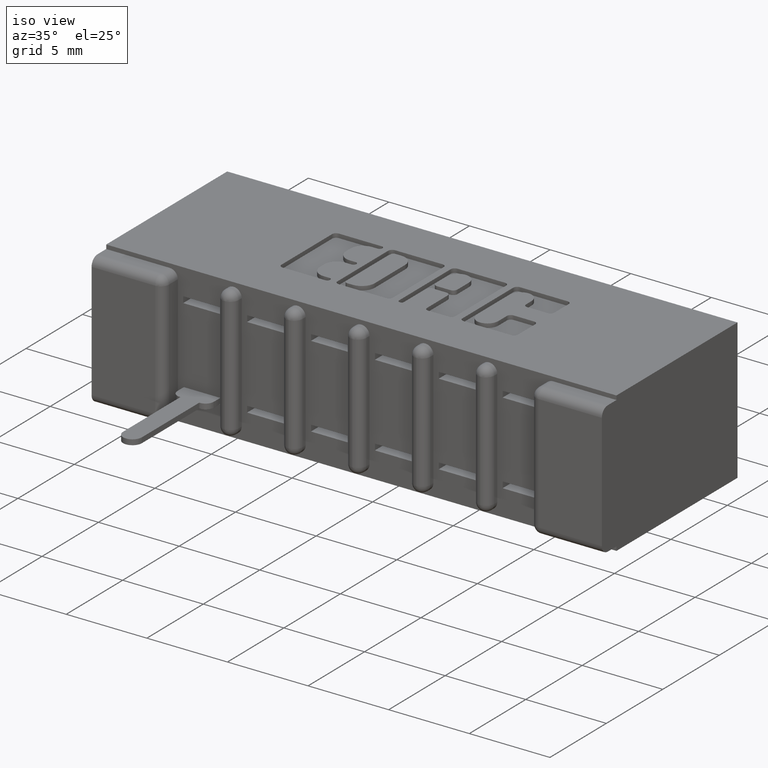
[diagram: clean part render]
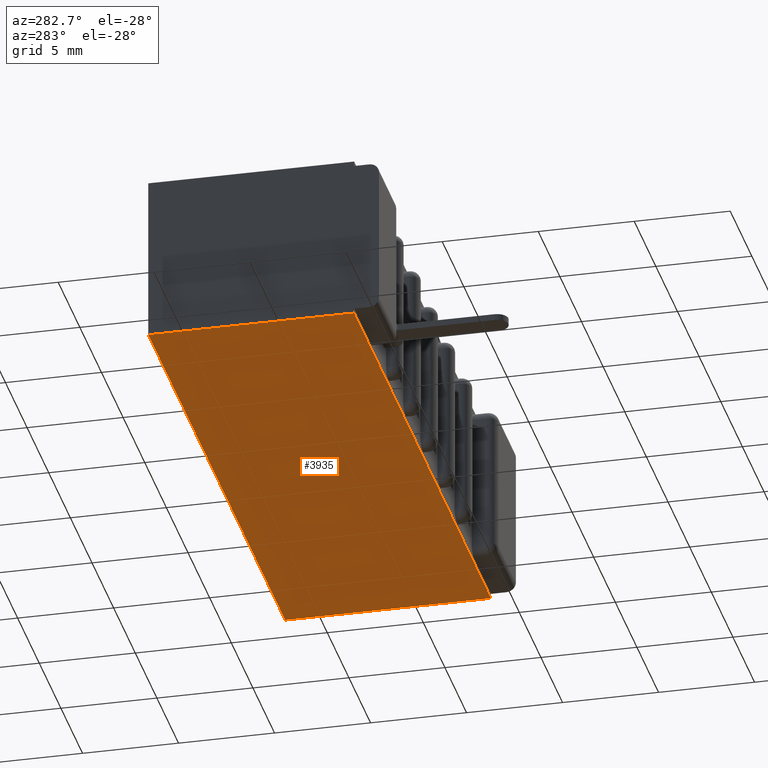
[diagram: tour spotlight — one face highlighted and labeled with its STEP entity id]
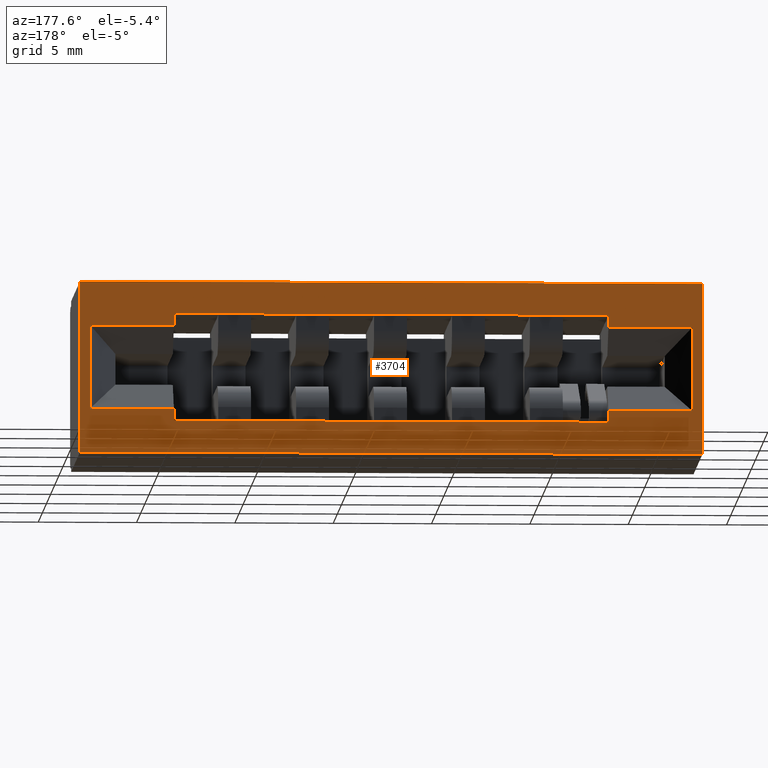
[diagram: tour spotlight — one face highlighted and labeled with its STEP entity id]
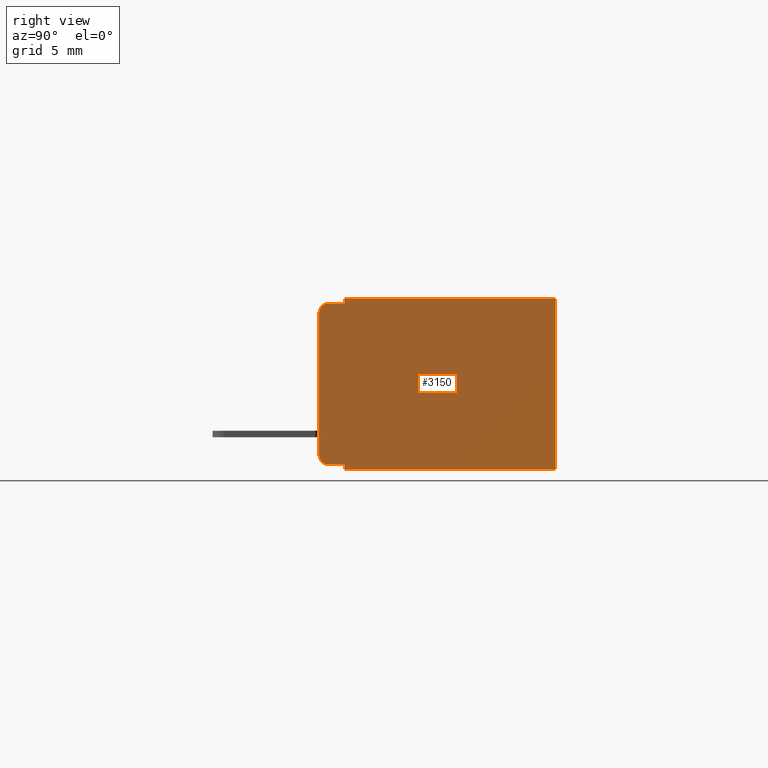
[diagram: tour spotlight — one face highlighted and labeled with its STEP entity id]
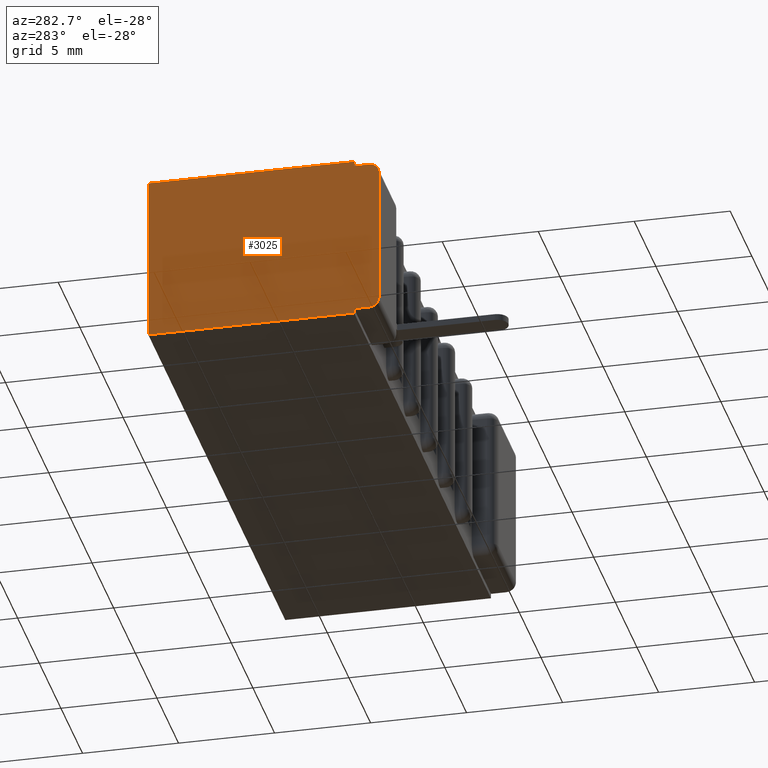
[diagram: tour spotlight — one face highlighted and labeled with its STEP entity id]
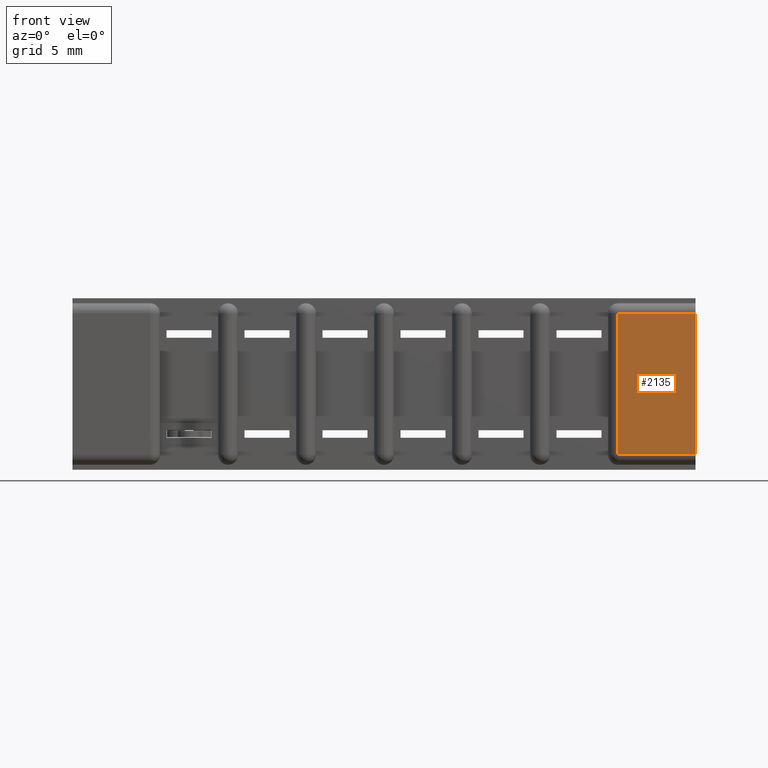
[diagram: tour spotlight — one face highlighted and labeled with its STEP entity id]
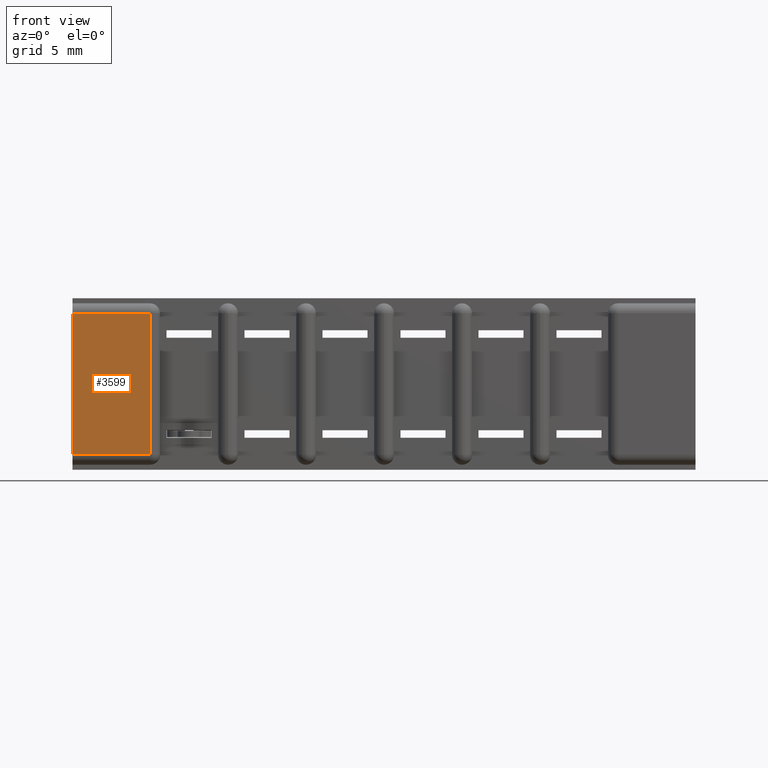
[diagram: tour spotlight — one face highlighted and labeled with its STEP entity id]
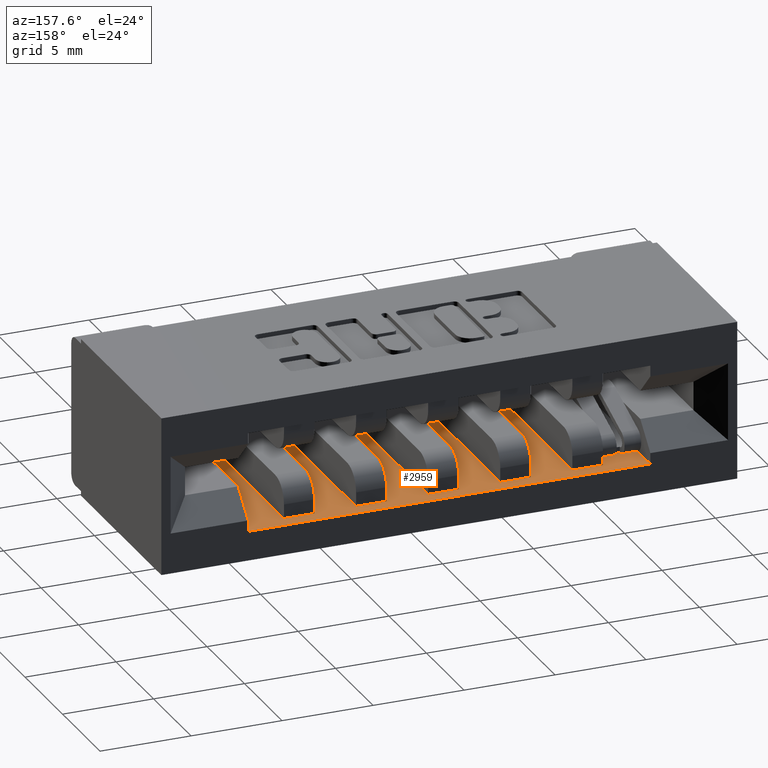
[diagram: tour spotlight — one face highlighted and labeled with its STEP entity id]
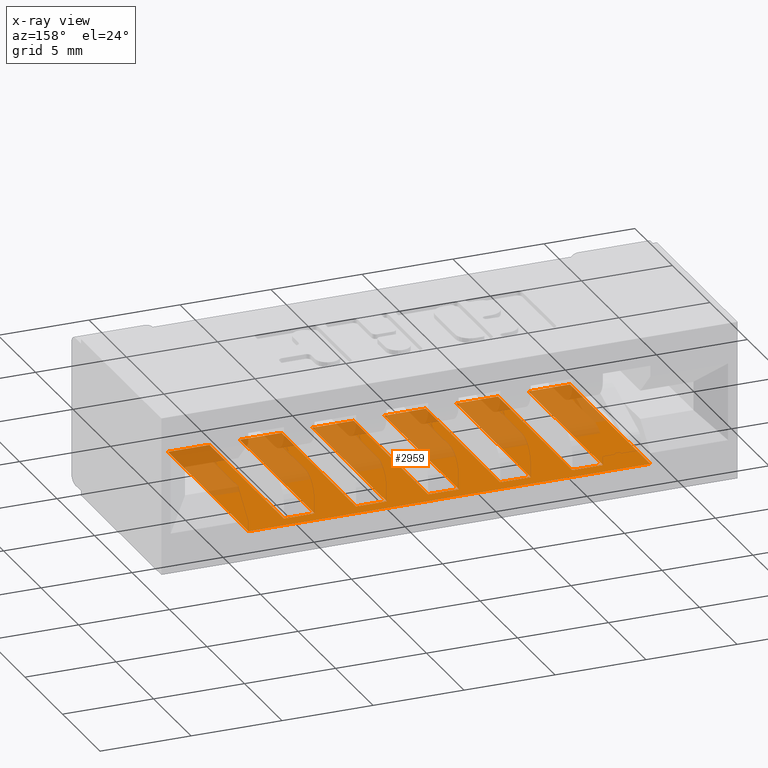
[diagram: x-ray of the same camera — body ghosted, this tour face saturated]
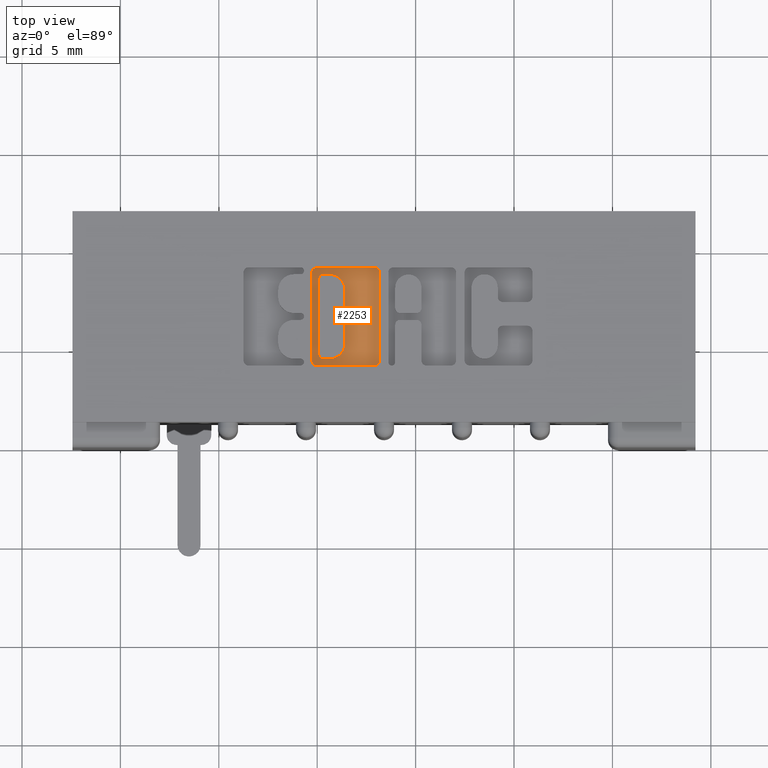
[diagram: tour spotlight — one face highlighted and labeled with its STEP entity id]
A machine part: a face-by-face anatomy tour. The part has 273 B-rep faces; the first image is the clean iso view, then the 8 largest visible faces are spotlighted one at a time (largest first), each with its STEP entity span.

Face 1 — auxiliary view, entity #3935. In plain terms, the highlighted planar face has unit normal (0, 0, 1).
Definition (entity closure, byte-faithful):
#537 = EDGE_LOOP ( 'NONE', ( #634, #614, #625, #5525 ) ) ;
#614 = ORIENTED_EDGE ( 'NONE', *, *, #5549, .F. ) ;
#625 = ORIENTED_EDGE ( 'NONE', *, *, #5534, .T. ) ;
#634 = ORIENTED_EDGE ( 'NONE', *, *, #5597, .F. ) ;
#1660 = CARTESIAN_POINT ( 'NONE',  ( 0.4730000000000003600, 0.05099999999999999700, -0.3430000000000000300 ) ) ;
#2003 = CARTESIAN_POINT ( 'NONE',  ( 0.2979999999999999300, 0.4729999999999999800, -0.3430000000000000300 ) ) ;
#2087 = PLANE ( 'NONE',  #7249 ) ;
#2254 = VERTEX_POINT ( 'NONE', #7565 ) ;
#2338 = LINE ( 'NONE', #5305, #2429 ) ;
#2429 = VECTOR ( 'NONE', #6404, 39.37007874015748100 ) ;
#2538 = VECTOR ( 'NONE', #4963, 39.37007874015748100 ) ;
#2601 = LINE ( 'NONE', #1660, #2538 ) ;
#2687 = VECTOR ( 'NONE', #3336, 39.37007874015748100 ) ;
#2741 = LINE ( 'NONE', #4741, #2687 ) ;
#2850 = FACE_OUTER_BOUND ( 'NONE', #537, .T. ) ;
#3009 = VERTEX_POINT ( 'NONE', #2003 ) ;
#3336 = DIRECTION ( 'NONE',  ( -1.000000000000000000, -0.0000000000000000000, -0.0000000000000000000 ) ) ;
#3714 = LINE ( 'NONE', #5442, #3725 ) ;
#3725 = VECTOR ( 'NONE', #8550, 39.37007874015748100 ) ;
#3935 = ADVANCED_FACE ( 'NONE', ( #2850 ), #2087, .F. ) ;
#3942 = CARTESIAN_POINT ( 'NONE',  ( 0.2979999999999999300, 0.05099999999999999700, -0.3430000000000000300 ) ) ;
#4741 = CARTESIAN_POINT ( 'NONE',  ( 0.0000000000000000000, 0.4729999999999999800, -0.3430000000000000300 ) ) ;
#4867 = DIRECTION ( 'NONE',  ( 0.0000000000000000000, 0.0000000000000000000, 1.000000000000000000 ) ) ;
#4963 = DIRECTION ( 'NONE',  ( 1.000000000000000000, 0.0000000000000000000, 0.0000000000000000000 ) ) ;
#5305 = CARTESIAN_POINT ( 'NONE',  ( 1.544000000000000700, 0.0000000000000000000, -0.3430000000000000300 ) ) ;
#5442 = CARTESIAN_POINT ( 'NONE',  ( 0.2979999999999999300, 0.0000000000000000000, -0.3430000000000000300 ) ) ;
#5524 = EDGE_CURVE ( 'NONE', #5826, #3009, #2741, .T. ) ;
#5525 = ORIENTED_EDGE ( 'NONE', *, *, #5524, .F. ) ;
#5534 = EDGE_CURVE ( 'NONE', #6828, #3009, #3714, .T. ) ;
#5549 = EDGE_CURVE ( 'NONE', #6828, #2254, #2601, .T. ) ;
#5597 = EDGE_CURVE ( 'NONE', #2254, #5826, #2338, .T. ) ;
#5826 = VERTEX_POINT ( 'NONE', #6808 ) ;
#5852 = CARTESIAN_POINT ( 'NONE',  ( 0.0000000000000000000, 0.4729999999999999800, -0.3430000000000000300 ) ) ;
#6404 = DIRECTION ( 'NONE',  ( -0.0000000000000000000, 1.000000000000000000, -0.0000000000000000000 ) ) ;
#6808 = CARTESIAN_POINT ( 'NONE',  ( 1.544000000000000700, 0.4729999999999999800, -0.3430000000000000300 ) ) ;
#6828 = VERTEX_POINT ( 'NONE', #3942 ) ;
#7249 = AXIS2_PLACEMENT_3D ( 'NONE', #5852, #4867, #9013 ) ;
#7565 = CARTESIAN_POINT ( 'NONE',  ( 1.544000000000000700, 0.05099999999999999700, -0.3430000000000000300 ) ) ;
#8550 = DIRECTION ( 'NONE',  ( -0.0000000000000000000, 1.000000000000000000, -0.0000000000000000000 ) ) ;
#9013 = DIRECTION ( 'NONE',  ( 1.000000000000000000, 0.0000000000000000000, -0.0000000000000000000 ) ) ;

Face 2 — auxiliary view, entity #3704. In plain terms, the highlighted planar face has unit normal (0, -1, 0).
Definition (entity closure, byte-faithful):
#9 = VECTOR ( 'NONE', #2848, 39.37007874015748100 ) ;
#31 = VECTOR ( 'NONE', #4545, 39.37007874015748100 ) ;
#64 = LINE ( 'NONE', #3900, #31 ) ;
#132 = VECTOR ( 'NONE', #4491, 39.37007874015748100 ) ;
#144 = LINE ( 'NONE', #4650, #132 ) ;
#156 = LINE ( 'NONE', #395, #204 ) ;
#162 = DIRECTION ( 'NONE',  ( -1.000000000000000000, 0.0000000000000000000, -1.552186360036511700E-017 ) ) ;
#204 = VECTOR ( 'NONE', #1400, 39.37007874015748100 ) ;
#235 = VECTOR ( 'NONE', #8595, 39.37007874015748100 ) ;
#247 = LINE ( 'NONE', #8771, #235 ) ;
#261 = CARTESIAN_POINT ( 'NONE',  ( 0.4860000000000004300, 0.4729999999999999800, -0.08749999999999962000 ) ) ;
#339 = LINE ( 'NONE', #2798, #9 ) ;
#395 = CARTESIAN_POINT ( 'NONE',  ( 1.524000000000001400, 0.4729999999999999800, -0.3430000000000000300 ) ) ;
#660 = VERTEX_POINT ( 'NONE', #8004 ) ;
#728 = ORIENTED_EDGE ( 'NONE', *, *, #6668, .T. ) ;
#987 = VECTOR ( 'NONE', #5713, 39.37007874015748100 ) ;
#1010 = LINE ( 'NONE', #8847, #987 ) ;
#1063 = VECTOR ( 'NONE', #3465, 39.37007874015748100 ) ;
#1080 = LINE ( 'NONE', #2649, #1063 ) ;
#1102 = CARTESIAN_POINT ( 'NONE',  ( 1.356000000000000500, 0.4729999999999999800, -0.2790000000000000300 ) ) ;
#1198 = VERTEX_POINT ( 'NONE', #3580 ) ;
#1227 = ORIENTED_EDGE ( 'NONE', *, *, #5155, .T. ) ;
#1291 = VERTEX_POINT ( 'NONE', #2808 ) ;
#1365 = VERTEX_POINT ( 'NONE', #2462 ) ;
#1400 = DIRECTION ( 'NONE',  ( 0.0000000000000000000, 0.0000000000000000000, 1.000000000000000000 ) ) ;
#1406 = CARTESIAN_POINT ( 'NONE',  ( 1.356000000000000500, 0.4729999999999999800, -0.06399999999999997400 ) ) ;
#1413 = VERTEX_POINT ( 'NONE', #1102 ) ;
#1875 = ORIENTED_EDGE ( 'NONE', *, *, #6445, .F. ) ;
#2003 = CARTESIAN_POINT ( 'NONE',  ( 0.2979999999999999300, 0.4729999999999999800, -0.3430000000000000300 ) ) ;
#2075 = DIRECTION ( 'NONE',  ( 0.0000000000000000000, 0.0000000000000000000, -1.000000000000000000 ) ) ;
#2118 = VERTEX_POINT ( 'NONE', #8717 ) ;
#2129 = VERTEX_POINT ( 'NONE', #5947 ) ;
#2232 = CARTESIAN_POINT ( 'NONE',  ( 1.544000000000000700, 0.4729999999999999800, 0.0000000000000000000 ) ) ;
#2462 = CARTESIAN_POINT ( 'NONE',  ( 1.524000000000001400, 0.4729999999999999800, -0.08749999999999959200 ) ) ;
#2524 = CARTESIAN_POINT ( 'NONE',  ( 0.4860000000000004300, 0.4729999999999999800, -0.06400000000000001500 ) ) ;
#2600 = CARTESIAN_POINT ( 'NONE',  ( 0.5760000000000004000, 0.4729999999999999800, -0.06400000000000004300 ) ) ;
#2639 = DIRECTION ( 'NONE',  ( -0.0000000000000000000, -0.0000000000000000000, 1.000000000000000000 ) ) ;
#2649 = CARTESIAN_POINT ( 'NONE',  ( 0.0000000000000000000, 0.4729999999999999800, -0.2555000000000006200 ) ) ;
#2687 = VECTOR ( 'NONE', #3336, 39.37007874015748100 ) ;
#2741 = LINE ( 'NONE', #4741, #2687 ) ;
#2798 = CARTESIAN_POINT ( 'NONE',  ( 0.2979999999999999900, 0.4729999999999999800, -2.966802850262209500E-017 ) ) ;
#2808 = CARTESIAN_POINT ( 'NONE',  ( 1.544000000000000700, 0.4729999999999999800, 0.0000000000000000000 ) ) ;
#2848 = DIRECTION ( 'NONE',  ( -9.955714262624865200E-017, 0.0000000000000000000, -1.000000000000000000 ) ) ;
#3008 = DIRECTION ( 'NONE',  ( 0.0000000000000000000, 0.0000000000000000000, -1.000000000000000000 ) ) ;
#3009 = VERTEX_POINT ( 'NONE', #2003 ) ;
#3336 = DIRECTION ( 'NONE',  ( -1.000000000000000000, -0.0000000000000000000, -0.0000000000000000000 ) ) ;
#3398 = CARTESIAN_POINT ( 'NONE',  ( -3.965836149893293600E-018, 0.4729999999999999800, -0.08749999999999962000 ) ) ;
#3465 = DIRECTION ( 'NONE',  ( 1.000000000000000000, 0.0000000000000000000, 0.0000000000000000000 ) ) ;
#3580 = CARTESIAN_POINT ( 'NONE',  ( 0.4860000000000004300, 0.4729999999999999800, -0.2790000000000000300 ) ) ;
#3644 = CARTESIAN_POINT ( 'NONE',  ( 0.4860000000000004300, 0.4729999999999999800, -0.06400000000000001500 ) ) ;
#3704 = ADVANCED_FACE ( 'NONE', ( #4004, #3920 ), #3728, .F. ) ;
#3728 = PLANE ( 'NONE',  #7437 ) ;
#3900 = CARTESIAN_POINT ( 'NONE',  ( 0.3179999999999991700, 0.4729999999999999800, -0.3430000000000000300 ) ) ;
#3920 = FACE_OUTER_BOUND ( 'NONE', #4097, .T. ) ;
#3927 = CARTESIAN_POINT ( 'NONE',  ( 1.524000000000001400, 0.4729999999999999800, -0.2555000000000006200 ) ) ;
#4004 = FACE_BOUND ( 'NONE', #7671, .T. ) ;
#4037 = CARTESIAN_POINT ( 'NONE',  ( 1.356000000000000500, 0.4729999999999999800, -0.08749999999999959200 ) ) ;
#4097 = EDGE_LOOP ( 'NONE', ( #5182, #6087, #6555, #1227 ) ) ;
#4298 = VERTEX_POINT ( 'NONE', #1406 ) ;
#4477 = VERTEX_POINT ( 'NONE', #4037 ) ;
#4491 = DIRECTION ( 'NONE',  ( 1.000000000000000000, 0.0000000000000000000, 0.0000000000000000000 ) ) ;
#4511 = EDGE_CURVE ( 'NONE', #2129, #8114, #1010, .T. ) ;
#4526 = CARTESIAN_POINT ( 'NONE',  ( -3.965836149893292800E-018, 0.4729999999999999800, -0.08749999999999964800 ) ) ;
#4545 = DIRECTION ( 'NONE',  ( 0.0000000000000000000, 0.0000000000000000000, -1.000000000000000000 ) ) ;
#4610 = DIRECTION ( 'NONE',  ( -1.000000000000000000, 0.0000000000000000000, 0.0000000000000000000 ) ) ;
#4629 = CARTESIAN_POINT ( 'NONE',  ( 0.4860000000000004300, 0.4729999999999999800, -0.06400000000000001500 ) ) ;
#4642 = ORIENTED_EDGE ( 'NONE', *, *, #8448, .F. ) ;
#4650 = CARTESIAN_POINT ( 'NONE',  ( 0.0000000000000000000, 0.4729999999999999800, 0.0000000000000000000 ) ) ;
#4657 = VERTEX_POINT ( 'NONE', #7877 ) ;
#4741 = CARTESIAN_POINT ( 'NONE',  ( 0.0000000000000000000, 0.4729999999999999800, -0.3430000000000000300 ) ) ;
#4950 = VECTOR ( 'NONE', #162, 39.37007874015748100 ) ;
#4975 = LINE ( 'NONE', #3398, #4950 ) ;
#4986 = VECTOR ( 'NONE', #7967, 39.37007874015748100 ) ;
#5004 = LINE ( 'NONE', #2600, #4986 ) ;
#5066 = ORIENTED_EDGE ( 'NONE', *, *, #7047, .F. ) ;
#5078 = EDGE_CURVE ( 'NONE', #4298, #4477, #247, .T. ) ;
#5129 = VECTOR ( 'NONE', #7873, 39.37007874015748100 ) ;
#5155 = EDGE_CURVE ( 'NONE', #4657, #1291, #144, .T. ) ;
#5182 = ORIENTED_EDGE ( 'NONE', *, *, #8086, .T. ) ;
#5189 = ORIENTED_EDGE ( 'NONE', *, *, #8894, .T. ) ;
#5216 = LINE ( 'NONE', #2524, #5129 ) ;
#5234 = ORIENTED_EDGE ( 'NONE', *, *, #4511, .T. ) ;
#5241 = ORIENTED_EDGE ( 'NONE', *, *, #9091, .T. ) ;
#5251 = ORIENTED_EDGE ( 'NONE', *, *, #6684, .F. ) ;
#5345 = ORIENTED_EDGE ( 'NONE', *, *, #8339, .F. ) ;
#5524 = EDGE_CURVE ( 'NONE', #5826, #3009, #2741, .T. ) ;
#5576 = ORIENTED_EDGE ( 'NONE', *, *, #6167, .T. ) ;
#5713 = DIRECTION ( 'NONE',  ( 1.000000000000000000, 0.0000000000000000000, 0.0000000000000000000 ) ) ;
#5826 = VERTEX_POINT ( 'NONE', #6808 ) ;
#5947 = CARTESIAN_POINT ( 'NONE',  ( 1.356000000000000500, 0.4729999999999999800, -0.2555000000000006200 ) ) ;
#6087 = ORIENTED_EDGE ( 'NONE', *, *, #5524, .T. ) ;
#6131 = EDGE_CURVE ( 'NONE', #4657, #3009, #339, .T. ) ;
#6167 = EDGE_CURVE ( 'NONE', #8114, #1365, #156, .T. ) ;
#6175 = VERTEX_POINT ( 'NONE', #261 ) ;
#6256 = VECTOR ( 'NONE', #3008, 39.37007874015748100 ) ;
#6327 = DIRECTION ( 'NONE',  ( 0.0000000000000000000, -1.000000000000000000, 0.0000000000000000000 ) ) ;
#6357 = LINE ( 'NONE', #2232, #6256 ) ;
#6363 = VERTEX_POINT ( 'NONE', #7033 ) ;
#6406 = VERTEX_POINT ( 'NONE', #3644 ) ;
#6445 = EDGE_CURVE ( 'NONE', #6175, #6406, #8555, .T. ) ;
#6461 = CARTESIAN_POINT ( 'NONE',  ( 1.356000000000000500, 0.4729999999999999800, -0.06399999999999997400 ) ) ;
#6555 = ORIENTED_EDGE ( 'NONE', *, *, #6131, .F. ) ;
#6668 = EDGE_CURVE ( 'NONE', #1365, #4477, #8447, .T. ) ;
#6684 = EDGE_CURVE ( 'NONE', #2129, #1413, #8268, .T. ) ;
#6808 = CARTESIAN_POINT ( 'NONE',  ( 1.544000000000000700, 0.4729999999999999800, -0.3430000000000000300 ) ) ;
#6813 = ORIENTED_EDGE ( 'NONE', *, *, #5078, .F. ) ;
#7033 = CARTESIAN_POINT ( 'NONE',  ( 0.3179999999999991700, 0.4729999999999999800, -0.08749999999999962000 ) ) ;
#7047 = EDGE_CURVE ( 'NONE', #1413, #1198, #7921, .T. ) ;
#7437 = AXIS2_PLACEMENT_3D ( 'NONE', #8656, #6327, #8077 ) ;
#7671 = EDGE_LOOP ( 'NONE', ( #5241, #5189, #5345, #5066, #5251, #5234, #5576, #728, #6813, #4642, #1875, #8539 ) ) ;
#7774 = CARTESIAN_POINT ( 'NONE',  ( 0.5760000000000004000, 0.4729999999999999800, -0.2790000000000000300 ) ) ;
#7873 = DIRECTION ( 'NONE',  ( -0.0000000000000000000, -0.0000000000000000000, 1.000000000000000000 ) ) ;
#7877 = CARTESIAN_POINT ( 'NONE',  ( 0.2979999999999999900, 0.4729999999999999800, 0.0000000000000000000 ) ) ;
#7921 = LINE ( 'NONE', #7774, #7959 ) ;
#7959 = VECTOR ( 'NONE', #4610, 39.37007874015748100 ) ;
#7967 = DIRECTION ( 'NONE',  ( 1.000000000000000000, -0.0000000000000000000, -1.897116662266849500E-016 ) ) ;
#8004 = CARTESIAN_POINT ( 'NONE',  ( 0.4860000000000004300, 0.4729999999999999800, -0.2555000000000006200 ) ) ;
#8077 = DIRECTION ( 'NONE',  ( 0.0000000000000000000, -0.0000000000000000000, -1.000000000000000000 ) ) ;
#8086 = EDGE_CURVE ( 'NONE', #1291, #5826, #6357, .T. ) ;
#8114 = VERTEX_POINT ( 'NONE', #3927 ) ;
#8257 = VECTOR ( 'NONE', #2075, 39.37007874015748100 ) ;
#8268 = LINE ( 'NONE', #6461, #8257 ) ;
#8329 = VECTOR ( 'NONE', #9042, 39.37007874015748100 ) ;
#8339 = EDGE_CURVE ( 'NONE', #1198, #660, #5216, .T. ) ;
#8447 = LINE ( 'NONE', #4526, #8329 ) ;
#8448 = EDGE_CURVE ( 'NONE', #6406, #4298, #5004, .T. ) ;
#8477 = EDGE_CURVE ( 'NONE', #6175, #6363, #4975, .T. ) ;
#8526 = VECTOR ( 'NONE', #2639, 39.37007874015748100 ) ;
#8539 = ORIENTED_EDGE ( 'NONE', *, *, #8477, .T. ) ;
#8555 = LINE ( 'NONE', #4629, #8526 ) ;
#8595 = DIRECTION ( 'NONE',  ( 0.0000000000000000000, 0.0000000000000000000, -1.000000000000000000 ) ) ;
#8656 = CARTESIAN_POINT ( 'NONE',  ( 0.0000000000000000000, 0.4729999999999999800, -0.3430000000000000300 ) ) ;
#8717 = CARTESIAN_POINT ( 'NONE',  ( 0.3179999999999991700, 0.4729999999999999800, -0.2555000000000006200 ) ) ;
#8771 = CARTESIAN_POINT ( 'NONE',  ( 1.356000000000000500, 0.4729999999999999800, -0.06399999999999997400 ) ) ;
#8847 = CARTESIAN_POINT ( 'NONE',  ( 0.0000000000000000000, 0.4729999999999999800, -0.2555000000000006200 ) ) ;
#8894 = EDGE_CURVE ( 'NONE', #2118, #660, #1080, .T. ) ;
#9042 = DIRECTION ( 'NONE',  ( -1.000000000000000000, 0.0000000000000000000, -1.552186360036511700E-017 ) ) ;
#9091 = EDGE_CURVE ( 'NONE', #6363, #2118, #64, .T. ) ;

Face 3 — right view, entity #3150. In plain terms, the highlighted planar face has unit normal (1, 0, 0).
Definition (entity closure, byte-faithful):
#92 = VERTEX_POINT ( 'NONE', #5967 ) ;
#177 = VECTOR ( 'NONE', #8945, 39.37007874015748100 ) ;
#193 = LINE ( 'NONE', #8974, #177 ) ;
#669 = ORIENTED_EDGE ( 'NONE', *, *, #7143, .T. ) ;
#734 = VERTEX_POINT ( 'NONE', #6667 ) ;
#1126 = ORIENTED_EDGE ( 'NONE', *, *, #5597, .T. ) ;
#1164 = ORIENTED_EDGE ( 'NONE', *, *, #8086, .F. ) ;
#1174 = ORIENTED_EDGE ( 'NONE', *, *, #5135, .F. ) ;
#1179 = CIRCLE ( 'NONE', #6860, 0.02000000000000000000 ) ;
#1202 = ORIENTED_EDGE ( 'NONE', *, *, #5608, .T. ) ;
#1232 = ORIENTED_EDGE ( 'NONE', *, *, #5705, .T. ) ;
#1238 = ORIENTED_EDGE ( 'NONE', *, *, #5945, .T. ) ;
#1291 = VERTEX_POINT ( 'NONE', #2808 ) ;
#1363 = DIRECTION ( 'NONE',  ( 0.0000000000000000000, 0.0000000000000000000, -1.000000000000000000 ) ) ;
#1707 = PLANE ( 'NONE',  #7839 ) ;
#1733 = DIRECTION ( 'NONE',  ( 1.000000000000000000, 0.0000000000000000000, 0.0000000000000000000 ) ) ;
#2108 = VERTEX_POINT ( 'NONE', #8586 ) ;
#2202 = VECTOR ( 'NONE', #2569, 39.37007874015748100 ) ;
#2232 = CARTESIAN_POINT ( 'NONE',  ( 1.544000000000000700, 0.4729999999999999800, 0.0000000000000000000 ) ) ;
#2254 = VERTEX_POINT ( 'NONE', #7565 ) ;
#2308 = VECTOR ( 'NONE', #5356, 39.37007874015748100 ) ;
#2330 = LINE ( 'NONE', #7780, #2202 ) ;
#2338 = LINE ( 'NONE', #5305, #2429 ) ;
#2402 = LINE ( 'NONE', #7001, #2308 ) ;
#2429 = VECTOR ( 'NONE', #6404, 39.37007874015748100 ) ;
#2500 = CARTESIAN_POINT ( 'NONE',  ( 1.544000000000000700, 0.0000000000000000000, 0.0000000000000000000 ) ) ;
#2569 = DIRECTION ( 'NONE',  ( 9.955714262624865200E-017, 0.0000000000000000000, -1.000000000000000000 ) ) ;
#2808 = CARTESIAN_POINT ( 'NONE',  ( 1.544000000000000700, 0.4729999999999999800, 0.0000000000000000000 ) ) ;
#2968 = DIRECTION ( 'NONE',  ( 0.0000000000000000000, 0.0000000000000000000, -1.000000000000000000 ) ) ;
#3008 = DIRECTION ( 'NONE',  ( 0.0000000000000000000, 0.0000000000000000000, -1.000000000000000000 ) ) ;
#3150 = ADVANCED_FACE ( 'NONE', ( #6252 ), #1707, .T. ) ;
#3176 = DIRECTION ( 'NONE',  ( 1.000000000000000000, 0.0000000000000000000, 0.0000000000000000000 ) ) ;
#3267 = VERTEX_POINT ( 'NONE', #6832 ) ;
#3606 = CARTESIAN_POINT ( 'NONE',  ( 1.544000000000000700, 0.0000000000000000000, 0.0000000000000000000 ) ) ;
#4084 = CARTESIAN_POINT ( 'NONE',  ( 1.544000000000000700, 0.05099999999999999700, -2.966802850262209500E-017 ) ) ;
#4464 = CARTESIAN_POINT ( 'NONE',  ( 1.544000000000000700, 0.05099999999999999700, 9.114728637344011900E-024 ) ) ;
#4503 = VERTEX_POINT ( 'NONE', #8976 ) ;
#4646 = DIRECTION ( 'NONE',  ( 9.955714262624865200E-017, 0.0000000000000000000, -1.000000000000000000 ) ) ;
#4854 = CARTESIAN_POINT ( 'NONE',  ( 1.544000000000000700, 0.02000000000000000000, -0.009999999999999995000 ) ) ;
#4942 = EDGE_LOOP ( 'NONE', ( #5938, #8725, #6162, #669, #1126, #1164, #1174, #1232, #1202, #1238 ) ) ;
#5135 = EDGE_CURVE ( 'NONE', #9031, #1291, #193, .T. ) ;
#5305 = CARTESIAN_POINT ( 'NONE',  ( 1.544000000000000700, 0.0000000000000000000, -0.3430000000000000300 ) ) ;
#5356 = DIRECTION ( 'NONE',  ( -0.0000000000000000000, -1.000000000000000000, -0.0000000000000000000 ) ) ;
#5593 = VERTEX_POINT ( 'NONE', #4854 ) ;
#5597 = EDGE_CURVE ( 'NONE', #2254, #5826, #2338, .T. ) ;
#5608 = EDGE_CURVE ( 'NONE', #734, #5593, #2402, .T. ) ;
#5705 = EDGE_CURVE ( 'NONE', #9031, #734, #2330, .T. ) ;
#5766 = DIRECTION ( 'NONE',  ( 0.0000000000000000000, 0.0000000000000000000, -1.000000000000000000 ) ) ;
#5769 = DIRECTION ( 'NONE',  ( 1.000000000000000000, 0.0000000000000000000, 0.0000000000000000000 ) ) ;
#5789 = CARTESIAN_POINT ( 'NONE',  ( 1.544000000000000700, 0.02000000000000000000, -0.03000000000000002300 ) ) ;
#5826 = VERTEX_POINT ( 'NONE', #6808 ) ;
#5938 = ORIENTED_EDGE ( 'NONE', *, *, #6574, .T. ) ;
#5945 = EDGE_CURVE ( 'NONE', #5593, #4503, #1179, .T. ) ;
#5967 = CARTESIAN_POINT ( 'NONE',  ( 1.544000000000000700, 0.0000000000000000000, -0.3130000000000000000 ) ) ;
#6162 = ORIENTED_EDGE ( 'NONE', *, *, #7142, .F. ) ;
#6252 = FACE_OUTER_BOUND ( 'NONE', #4942, .T. ) ;
#6256 = VECTOR ( 'NONE', #3008, 39.37007874015748100 ) ;
#6357 = LINE ( 'NONE', #2232, #6256 ) ;
#6404 = DIRECTION ( 'NONE',  ( -0.0000000000000000000, 1.000000000000000000, -0.0000000000000000000 ) ) ;
#6574 = EDGE_CURVE ( 'NONE', #4503, #92, #8610, .T. ) ;
#6667 = CARTESIAN_POINT ( 'NONE',  ( 1.544000000000000700, 0.05099999999999999700, -0.009999999999999995000 ) ) ;
#6796 = AXIS2_PLACEMENT_3D ( 'NONE', #7160, #3176, #7799 ) ;
#6808 = CARTESIAN_POINT ( 'NONE',  ( 1.544000000000000700, 0.4729999999999999800, -0.3430000000000000300 ) ) ;
#6832 = CARTESIAN_POINT ( 'NONE',  ( 1.544000000000000700, 0.02000000000000000000, -0.3329999999999999600 ) ) ;
#6860 = AXIS2_PLACEMENT_3D ( 'NONE', #5789, #5769, #5766 ) ;
#7001 = CARTESIAN_POINT ( 'NONE',  ( 1.544000000000000700, 0.05099999999999999700, -0.009999999999999995000 ) ) ;
#7083 = EDGE_CURVE ( 'NONE', #92, #3267, #7935, .T. ) ;
#7142 = EDGE_CURVE ( 'NONE', #2108, #3267, #7798, .T. ) ;
#7143 = EDGE_CURVE ( 'NONE', #2108, #2254, #7789, .T. ) ;
#7160 = CARTESIAN_POINT ( 'NONE',  ( 1.544000000000000700, 0.02000000000000000000, -0.3130000000000000000 ) ) ;
#7189 = CARTESIAN_POINT ( 'NONE',  ( 1.544000000000000700, 0.05099999999999999700, -0.3329999999999999600 ) ) ;
#7565 = CARTESIAN_POINT ( 'NONE',  ( 1.544000000000000700, 0.05099999999999999700, -0.3430000000000000300 ) ) ;
#7710 = VECTOR ( 'NONE', #4646, 39.37007874015748100 ) ;
#7780 = CARTESIAN_POINT ( 'NONE',  ( 1.544000000000000700, 0.05099999999999999700, -2.966802850262209500E-017 ) ) ;
#7783 = VECTOR ( 'NONE', #7824, 39.37007874015748100 ) ;
#7789 = LINE ( 'NONE', #4084, #7710 ) ;
#7798 = LINE ( 'NONE', #7189, #7783 ) ;
#7799 = DIRECTION ( 'NONE',  ( 0.0000000000000000000, 0.0000000000000000000, -1.000000000000000000 ) ) ;
#7824 = DIRECTION ( 'NONE',  ( -0.0000000000000000000, -1.000000000000000000, -0.0000000000000000000 ) ) ;
#7839 = AXIS2_PLACEMENT_3D ( 'NONE', #2500, #1733, #2968 ) ;
#7935 = CIRCLE ( 'NONE', #6796, 0.01999999999999999000 ) ;
#8086 = EDGE_CURVE ( 'NONE', #1291, #5826, #6357, .T. ) ;
#8450 = VECTOR ( 'NONE', #1363, 39.37007874015748100 ) ;
#8586 = CARTESIAN_POINT ( 'NONE',  ( 1.544000000000000700, 0.05099999999999999700, -0.3329999999999999600 ) ) ;
#8610 = LINE ( 'NONE', #3606, #8450 ) ;
#8725 = ORIENTED_EDGE ( 'NONE', *, *, #7083, .T. ) ;
#8945 = DIRECTION ( 'NONE',  ( -0.0000000000000000000, 1.000000000000000000, -0.0000000000000000000 ) ) ;
#8974 = CARTESIAN_POINT ( 'NONE',  ( 1.544000000000000700, 0.0000000000000000000, 0.0000000000000000000 ) ) ;
#8976 = CARTESIAN_POINT ( 'NONE',  ( 1.544000000000000700, 0.0000000000000000000, -0.03000000000000002300 ) ) ;
#9031 = VERTEX_POINT ( 'NONE', #4464 ) ;

Face 4 — auxiliary view, entity #3025. In plain terms, the highlighted planar face has unit normal (1, 0, -0).
Definition (entity closure, byte-faithful):
#9 = VECTOR ( 'NONE', #2848, 39.37007874015748100 ) ;
#57 = DIRECTION ( 'NONE',  ( 0.0000000000000000000, 0.0000000000000000000, -1.000000000000000000 ) ) ;
#73 = DIRECTION ( 'NONE',  ( -1.000000000000000000, -0.0000000000000000000, 9.955714262624866500E-017 ) ) ;
#74 = CARTESIAN_POINT ( 'NONE',  ( 0.2979999999999999300, 0.02000000000000000000, -0.3130000000000000000 ) ) ;
#133 = VERTEX_POINT ( 'NONE', #4085 ) ;
#339 = LINE ( 'NONE', #2798, #9 ) ;
#389 = VECTOR ( 'NONE', #613, 39.37007874015748100 ) ;
#534 = DIRECTION ( 'NONE',  ( -0.0000000000000000000, 1.000000000000000000, -0.0000000000000000000 ) ) ;
#595 = CARTESIAN_POINT ( 'NONE',  ( 0.2979999999999999900, 0.05099999999999999700, -2.966802850262209500E-017 ) ) ;
#613 = DIRECTION ( 'NONE',  ( -9.955714262624865200E-017, 0.0000000000000000000, -1.000000000000000000 ) ) ;
#630 = VECTOR ( 'NONE', #662, 39.37007874015748100 ) ;
#631 = VECTOR ( 'NONE', #534, 39.37007874015748100 ) ;
#647 = LINE ( 'NONE', #757, #630 ) ;
#662 = DIRECTION ( 'NONE',  ( -0.0000000000000000000, -1.000000000000000000, -0.0000000000000000000 ) ) ;
#682 = LINE ( 'NONE', #8286, #631 ) ;
#722 = LINE ( 'NONE', #595, #389 ) ;
#757 = CARTESIAN_POINT ( 'NONE',  ( 0.2979999999999999300, 0.05099999999999999700, -0.009999999999999995000 ) ) ;
#916 = CIRCLE ( 'NONE', #6852, 0.02000000000000000000 ) ;
#936 = VECTOR ( 'NONE', #4191, 39.37007874015748100 ) ;
#986 = VERTEX_POINT ( 'NONE', #7199 ) ;
#1052 = LINE ( 'NONE', #3730, #936 ) ;
#1233 = CARTESIAN_POINT ( 'NONE',  ( 0.2979999999999999900, 0.0000000000000000000, -2.966802850262209500E-017 ) ) ;
#1284 = DIRECTION ( 'NONE',  ( -9.955714262624865200E-017, 0.0000000000000000000, -1.000000000000000000 ) ) ;
#1302 = DIRECTION ( 'NONE',  ( 1.000000000000000000, 0.0000000000000000000, -9.955714262624865200E-017 ) ) ;
#1811 = CARTESIAN_POINT ( 'NONE',  ( 0.2979999999999999300, 0.0000000000000000000, -0.3130000000000000000 ) ) ;
#1882 = ORIENTED_EDGE ( 'NONE', *, *, #5978, .F. ) ;
#1922 = ORIENTED_EDGE ( 'NONE', *, *, #6041, .F. ) ;
#1932 = CARTESIAN_POINT ( 'NONE',  ( 0.2979999999999999900, 0.0000000000000000000, -0.02999999999999999500 ) ) ;
#1935 = CARTESIAN_POINT ( 'NONE',  ( 0.2979999999999999300, 0.05099999999999999700, -0.009999999999999995000 ) ) ;
#2002 = ORIENTED_EDGE ( 'NONE', *, *, #6026, .T. ) ;
#2003 = CARTESIAN_POINT ( 'NONE',  ( 0.2979999999999999300, 0.4729999999999999800, -0.3430000000000000300 ) ) ;
#2033 = PLANE ( 'NONE',  #2612 ) ;
#2066 = VERTEX_POINT ( 'NONE', #1811 ) ;
#2136 = DIRECTION ( 'NONE',  ( 0.0000000000000000000, 0.0000000000000000000, -1.000000000000000000 ) ) ;
#2156 = DIRECTION ( 'NONE',  ( -1.000000000000000000, -0.0000000000000000000, 9.955714262624866500E-017 ) ) ;
#2211 = ORIENTED_EDGE ( 'NONE', *, *, #6321, .T. ) ;
#2299 = CARTESIAN_POINT ( 'NONE',  ( 0.2979999999999999900, 0.05099999999999999700, -2.966802850262209500E-017 ) ) ;
#2571 = CARTESIAN_POINT ( 'NONE',  ( 0.2979999999999999300, 0.05099999999999999700, -0.3329999999999999600 ) ) ;
#2612 = AXIS2_PLACEMENT_3D ( 'NONE', #1233, #1302, #1284 ) ;
#2798 = CARTESIAN_POINT ( 'NONE',  ( 0.2979999999999999900, 0.4729999999999999800, -2.966802850262209500E-017 ) ) ;
#2848 = DIRECTION ( 'NONE',  ( -9.955714262624865200E-017, 0.0000000000000000000, -1.000000000000000000 ) ) ;
#3009 = VERTEX_POINT ( 'NONE', #2003 ) ;
#3025 = ADVANCED_FACE ( 'NONE', ( #6639 ), #2033, .F. ) ;
#3044 = ORIENTED_EDGE ( 'NONE', *, *, #6324, .T. ) ;
#3189 = ORIENTED_EDGE ( 'NONE', *, *, #5534, .F. ) ;
#3386 = VERTEX_POINT ( 'NONE', #2571 ) ;
#3458 = ORIENTED_EDGE ( 'NONE', *, *, #4776, .T. ) ;
#3495 = DIRECTION ( 'NONE',  ( -0.0000000000000000000, -1.000000000000000000, -0.0000000000000000000 ) ) ;
#3714 = LINE ( 'NONE', #5442, #3725 ) ;
#3725 = VECTOR ( 'NONE', #8550, 39.37007874015748100 ) ;
#3729 = CARTESIAN_POINT ( 'NONE',  ( 0.2979999999999999900, 0.02000000000000000000, -0.02999999999999999500 ) ) ;
#3730 = CARTESIAN_POINT ( 'NONE',  ( 0.2979999999999999900, 0.0000000000000000000, -2.966802850262209500E-017 ) ) ;
#3929 = VERTEX_POINT ( 'NONE', #8180 ) ;
#3942 = CARTESIAN_POINT ( 'NONE',  ( 0.2979999999999999300, 0.05099999999999999700, -0.3430000000000000300 ) ) ;
#4085 = CARTESIAN_POINT ( 'NONE',  ( 0.2979999999999999300, 0.02000000000000000000, -0.009999999999999995000 ) ) ;
#4127 = ORIENTED_EDGE ( 'NONE', *, *, #6063, .F. ) ;
#4191 = DIRECTION ( 'NONE',  ( -9.955714262624865200E-017, 0.0000000000000000000, -1.000000000000000000 ) ) ;
#4234 = ORIENTED_EDGE ( 'NONE', *, *, #6131, .T. ) ;
#4339 = DIRECTION ( 'NONE',  ( -9.955714262624865200E-017, 0.0000000000000000000, -1.000000000000000000 ) ) ;
#4369 = VERTEX_POINT ( 'NONE', #1935 ) ;
#4630 = ORIENTED_EDGE ( 'NONE', *, *, #6308, .F. ) ;
#4657 = VERTEX_POINT ( 'NONE', #7877 ) ;
#4776 = EDGE_CURVE ( 'NONE', #3929, #4657, #682, .T. ) ;
#5442 = CARTESIAN_POINT ( 'NONE',  ( 0.2979999999999999300, 0.0000000000000000000, -0.3430000000000000300 ) ) ;
#5534 = EDGE_CURVE ( 'NONE', #6828, #3009, #3714, .T. ) ;
#5744 = VERTEX_POINT ( 'NONE', #1932 ) ;
#5978 = EDGE_CURVE ( 'NONE', #5744, #2066, #1052, .T. ) ;
#6026 = EDGE_CURVE ( 'NONE', #5744, #133, #916, .T. ) ;
#6041 = EDGE_CURVE ( 'NONE', #4369, #133, #647, .T. ) ;
#6063 = EDGE_CURVE ( 'NONE', #3929, #4369, #722, .T. ) ;
#6131 = EDGE_CURVE ( 'NONE', #4657, #3009, #339, .T. ) ;
#6308 = EDGE_CURVE ( 'NONE', #3386, #6828, #8751, .T. ) ;
#6321 = EDGE_CURVE ( 'NONE', #3386, #986, #8772, .T. ) ;
#6324 = EDGE_CURVE ( 'NONE', #986, #2066, #8651, .T. ) ;
#6637 = EDGE_LOOP ( 'NONE', ( #1882, #2002, #1922, #4127, #3458, #4234, #3189, #4630, #2211, #3044 ) ) ;
#6639 = FACE_OUTER_BOUND ( 'NONE', #6637, .T. ) ;
#6821 = AXIS2_PLACEMENT_3D ( 'NONE', #74, #73, #57 ) ;
#6828 = VERTEX_POINT ( 'NONE', #3942 ) ;
#6852 = AXIS2_PLACEMENT_3D ( 'NONE', #3729, #2156, #2136 ) ;
#7199 = CARTESIAN_POINT ( 'NONE',  ( 0.2979999999999999300, 0.02000000000000000000, -0.3329999999999999600 ) ) ;
#7351 = CARTESIAN_POINT ( 'NONE',  ( 0.2979999999999999300, 0.05099999999999999700, -0.3329999999999999600 ) ) ;
#7877 = CARTESIAN_POINT ( 'NONE',  ( 0.2979999999999999900, 0.4729999999999999800, 0.0000000000000000000 ) ) ;
#8180 = CARTESIAN_POINT ( 'NONE',  ( 0.2979999999999999900, 0.05099999999999999700, 9.114728637344011900E-024 ) ) ;
#8286 = CARTESIAN_POINT ( 'NONE',  ( 0.2979999999999999900, 0.0000000000000000000, 0.0000000000000000000 ) ) ;
#8550 = DIRECTION ( 'NONE',  ( -0.0000000000000000000, 1.000000000000000000, -0.0000000000000000000 ) ) ;
#8651 = CIRCLE ( 'NONE', #6821, 0.01999999999999999000 ) ;
#8679 = VECTOR ( 'NONE', #3495, 39.37007874015748100 ) ;
#8709 = VECTOR ( 'NONE', #4339, 39.37007874015748100 ) ;
#8751 = LINE ( 'NONE', #2299, #8709 ) ;
#8772 = LINE ( 'NONE', #7351, #8679 ) ;

Face 5 — front view, entity #2135. In plain terms, the highlighted planar face has unit normal (0, -1, 0).
Definition (entity closure, byte-faithful):
#92 = VERTEX_POINT ( 'NONE', #5967 ) ;
#370 = CARTESIAN_POINT ( 'NONE',  ( 1.389000000000000500, 0.0000000000000000000, -0.3129999999999998900 ) ) ;
#523 = DIRECTION ( 'NONE',  ( 1.991142852524973500E-015, -0.0000000000000000000, -1.000000000000000000 ) ) ;
#1059 = VERTEX_POINT ( 'NONE', #7068 ) ;
#1261 = ORIENTED_EDGE ( 'NONE', *, *, #6375, .T. ) ;
#1363 = DIRECTION ( 'NONE',  ( 0.0000000000000000000, 0.0000000000000000000, -1.000000000000000000 ) ) ;
#2135 = ADVANCED_FACE ( 'NONE', ( #6971 ), #8888, .T. ) ;
#2586 = VERTEX_POINT ( 'NONE', #9014 ) ;
#2645 = CARTESIAN_POINT ( 'NONE',  ( 0.0000000000000000000, 0.0000000000000000000, -0.03000000000000002300 ) ) ;
#2756 = ORIENTED_EDGE ( 'NONE', *, *, #6521, .T. ) ;
#3221 = EDGE_CURVE ( 'NONE', #1059, #2586, #5890, .T. ) ;
#3475 = EDGE_LOOP ( 'NONE', ( #4578, #1261, #4751, #2756 ) ) ;
#3606 = CARTESIAN_POINT ( 'NONE',  ( 1.544000000000000700, 0.0000000000000000000, 0.0000000000000000000 ) ) ;
#3662 = DIRECTION ( 'NONE',  ( -1.000000000000000000, 0.0000000000000000000, 0.0000000000000000000 ) ) ;
#3925 = AXIS2_PLACEMENT_3D ( 'NONE', #6006, #5939, #5616 ) ;
#4362 = CARTESIAN_POINT ( 'NONE',  ( 1.544000000000000700, 0.0000000000000000000, -0.3130000000000000000 ) ) ;
#4421 = DIRECTION ( 'NONE',  ( 1.000000000000000000, -0.0000000000000000000, -0.0000000000000000000 ) ) ;
#4503 = VERTEX_POINT ( 'NONE', #8976 ) ;
#4578 = ORIENTED_EDGE ( 'NONE', *, *, #3221, .T. ) ;
#4751 = ORIENTED_EDGE ( 'NONE', *, *, #6574, .F. ) ;
#5616 = DIRECTION ( 'NONE',  ( 0.0000000000000000000, -0.0000000000000000000, -1.000000000000000000 ) ) ;
#5837 = VECTOR ( 'NONE', #523, 39.37007874015748100 ) ;
#5890 = LINE ( 'NONE', #370, #5837 ) ;
#5939 = DIRECTION ( 'NONE',  ( 0.0000000000000000000, -1.000000000000000000, 0.0000000000000000000 ) ) ;
#5967 = CARTESIAN_POINT ( 'NONE',  ( 1.544000000000000700, 0.0000000000000000000, -0.3130000000000000000 ) ) ;
#6006 = CARTESIAN_POINT ( 'NONE',  ( 0.0000000000000000000, 0.0000000000000000000, -0.3430000000000000300 ) ) ;
#6375 = EDGE_CURVE ( 'NONE', #2586, #92, #8583, .T. ) ;
#6521 = EDGE_CURVE ( 'NONE', #4503, #1059, #8511, .T. ) ;
#6574 = EDGE_CURVE ( 'NONE', #4503, #92, #8610, .T. ) ;
#6971 = FACE_OUTER_BOUND ( 'NONE', #3475, .T. ) ;
#7068 = CARTESIAN_POINT ( 'NONE',  ( 1.389000000000000500, 0.0000000000000000000, -0.03000000000000002300 ) ) ;
#8450 = VECTOR ( 'NONE', #1363, 39.37007874015748100 ) ;
#8496 = VECTOR ( 'NONE', #3662, 39.37007874015748100 ) ;
#8511 = LINE ( 'NONE', #2645, #8496 ) ;
#8575 = VECTOR ( 'NONE', #4421, 39.37007874015748100 ) ;
#8583 = LINE ( 'NONE', #4362, #8575 ) ;
#8610 = LINE ( 'NONE', #3606, #8450 ) ;
#8888 = PLANE ( 'NONE',  #3925 ) ;
#8976 = CARTESIAN_POINT ( 'NONE',  ( 1.544000000000000700, 0.0000000000000000000, -0.03000000000000002300 ) ) ;
#9014 = CARTESIAN_POINT ( 'NONE',  ( 1.389000000000000500, 0.0000000000000000000, -0.3130000000000000000 ) ) ;

Face 6 — front view, entity #3599. In plain terms, the highlighted planar face has unit normal (0, -1, 0).
Definition (entity closure, byte-faithful):
#306 = VERTEX_POINT ( 'NONE', #5050 ) ;
#427 = VERTEX_POINT ( 'NONE', #8637 ) ;
#871 = VECTOR ( 'NONE', #5960, 39.37007874015748100 ) ;
#908 = LINE ( 'NONE', #4224, #871 ) ;
#936 = VECTOR ( 'NONE', #4191, 39.37007874015748100 ) ;
#1052 = LINE ( 'NONE', #3730, #936 ) ;
#1176 = EDGE_LOOP ( 'NONE', ( #2884, #7693, #1635, #5600 ) ) ;
#1496 = LINE ( 'NONE', #6491, #1544 ) ;
#1544 = VECTOR ( 'NONE', #7479, 39.37007874015748100 ) ;
#1635 = ORIENTED_EDGE ( 'NONE', *, *, #5978, .T. ) ;
#1787 = VECTOR ( 'NONE', #6305, 39.37007874015748100 ) ;
#1811 = CARTESIAN_POINT ( 'NONE',  ( 0.2979999999999999300, 0.0000000000000000000, -0.3130000000000000000 ) ) ;
#1847 = LINE ( 'NONE', #8502, #1787 ) ;
#1932 = CARTESIAN_POINT ( 'NONE',  ( 0.2979999999999999900, 0.0000000000000000000, -0.02999999999999999500 ) ) ;
#2052 = CARTESIAN_POINT ( 'NONE',  ( 0.0000000000000000000, 0.0000000000000000000, -0.3430000000000000300 ) ) ;
#2066 = VERTEX_POINT ( 'NONE', #1811 ) ;
#2696 = DIRECTION ( 'NONE',  ( 0.0000000000000000000, -0.0000000000000000000, -1.000000000000000000 ) ) ;
#2884 = ORIENTED_EDGE ( 'NONE', *, *, #5788, .T. ) ;
#3599 = ADVANCED_FACE ( 'NONE', ( #4322 ), #8761, .T. ) ;
#3730 = CARTESIAN_POINT ( 'NONE',  ( 0.2979999999999999900, 0.0000000000000000000, -2.966802850262209500E-017 ) ) ;
#4191 = DIRECTION ( 'NONE',  ( -9.955714262624865200E-017, 0.0000000000000000000, -1.000000000000000000 ) ) ;
#4224 = CARTESIAN_POINT ( 'NONE',  ( 0.0000000000000000000, 0.0000000000000000000, -0.3130000000000000000 ) ) ;
#4322 = FACE_OUTER_BOUND ( 'NONE', #1176, .T. ) ;
#5050 = CARTESIAN_POINT ( 'NONE',  ( 0.4530000000000003500, 0.0000000000000000000, -0.3130000000000000000 ) ) ;
#5600 = ORIENTED_EDGE ( 'NONE', *, *, #6024, .T. ) ;
#5744 = VERTEX_POINT ( 'NONE', #1932 ) ;
#5788 = EDGE_CURVE ( 'NONE', #306, #427, #1847, .T. ) ;
#5855 = EDGE_CURVE ( 'NONE', #427, #5744, #1496, .T. ) ;
#5960 = DIRECTION ( 'NONE',  ( 1.000000000000000000, 0.0000000000000000000, 0.0000000000000000000 ) ) ;
#5978 = EDGE_CURVE ( 'NONE', #5744, #2066, #1052, .T. ) ;
#6024 = EDGE_CURVE ( 'NONE', #2066, #306, #908, .T. ) ;
#6305 = DIRECTION ( 'NONE',  ( -1.592914282019978400E-015, -0.0000000000000000000, 1.000000000000000000 ) ) ;
#6491 = CARTESIAN_POINT ( 'NONE',  ( 0.2979999999999999300, 0.0000000000000000000, -0.02999999999999999500 ) ) ;
#7174 = DIRECTION ( 'NONE',  ( 0.0000000000000000000, -1.000000000000000000, 0.0000000000000000000 ) ) ;
#7479 = DIRECTION ( 'NONE',  ( -1.000000000000000000, -0.0000000000000000000, 0.0000000000000000000 ) ) ;
#7553 = AXIS2_PLACEMENT_3D ( 'NONE', #2052, #7174, #2696 ) ;
#7693 = ORIENTED_EDGE ( 'NONE', *, *, #5855, .T. ) ;
#8502 = CARTESIAN_POINT ( 'NONE',  ( 0.4529999999999999000, 0.0000000000000000000, -0.03000000000000002300 ) ) ;
#8637 = CARTESIAN_POINT ( 'NONE',  ( 0.4529999999999999000, 0.0000000000000000000, -0.03000000000000000600 ) ) ;
#8761 = PLANE ( 'NONE',  #7553 ) ;

Face 7 — auxiliary view, entity #2959. An x-ray twin of the same camera follows (body ghosted, this face saturated) — the face is partly hidden behind the body. In plain terms, the highlighted planar face has unit normal (0, 0, -1).
Definition (entity closure, byte-faithful):
#108 = VERTEX_POINT ( 'NONE', #2349 ) ;
#121 = CARTESIAN_POINT ( 'NONE',  ( 0.8880000000000004600, 0.05099999999999999700, -0.2790000000000000300 ) ) ;
#238 = DIRECTION ( 'NONE',  ( -1.000000000000000000, -0.0000000000000000000, -0.0000000000000000000 ) ) ;
#317 = ORIENTED_EDGE ( 'NONE', *, *, #6720, .F. ) ;
#324 = VERTEX_POINT ( 'NONE', #5684 ) ;
#396 = VERTEX_POINT ( 'NONE', #6691 ) ;
#413 = VECTOR ( 'NONE', #1347, 39.37007874015748100 ) ;
#444 = LINE ( 'NONE', #495, #413 ) ;
#461 = DIRECTION ( 'NONE',  ( -0.0000000000000000000, 1.000000000000000000, -0.0000000000000000000 ) ) ;
#495 = CARTESIAN_POINT ( 'NONE',  ( 0.4860000000000004300, 0.4419999999999999500, -0.2790000000000000300 ) ) ;
#498 = VECTOR ( 'NONE', #2010, 39.37007874015748100 ) ;
#510 = VECTOR ( 'NONE', #461, 39.37007874015748100 ) ;
#544 = LINE ( 'NONE', #8878, #510 ) ;
#574 = VERTEX_POINT ( 'NONE', #7834 ) ;
#645 = ORIENTED_EDGE ( 'NONE', *, *, #8913, .F. ) ;
#649 = LINE ( 'NONE', #4391, #498 ) ;
#655 = VERTEX_POINT ( 'NONE', #9093 ) ;
#725 = ORIENTED_EDGE ( 'NONE', *, *, #3694, .F. ) ;
#761 = VERTEX_POINT ( 'NONE', #6737 ) ;
#791 = DIRECTION ( 'NONE',  ( -0.0000000000000000000, 1.000000000000000000, -0.0000000000000000000 ) ) ;
#845 = ORIENTED_EDGE ( 'NONE', *, *, #8843, .T. ) ;
#867 = ORIENTED_EDGE ( 'NONE', *, *, #8830, .T. ) ;
#873 = PLANE ( 'NONE',  #5785 ) ;
#923 = LINE ( 'NONE', #2712, #1066 ) ;
#943 = CARTESIAN_POINT ( 'NONE',  ( 0.5760000000000004000, 0.1160000000000000100, -0.2790000000000000300 ) ) ;
#965 = CARTESIAN_POINT ( 'NONE',  ( 0.5760000000000004000, 0.05099999999999999700, -0.2790000000000000300 ) ) ;
#995 = VECTOR ( 'NONE', #3500, 39.37007874015748100 ) ;
#1000 = LINE ( 'NONE', #1082, #995 ) ;
#1066 = VECTOR ( 'NONE', #8101, 39.37007874015748100 ) ;
#1082 = CARTESIAN_POINT ( 'NONE',  ( 0.6420000000000004600, 0.1160000000000000100, -0.2790000000000000300 ) ) ;
#1091 = CARTESIAN_POINT ( 'NONE',  ( 0.4860000000000004300, 0.4419999999999999500, -0.2790000000000000300 ) ) ;
#1102 = CARTESIAN_POINT ( 'NONE',  ( 1.356000000000000500, 0.4729999999999999800, -0.2790000000000000300 ) ) ;
#1144 = ORIENTED_EDGE ( 'NONE', *, *, #8989, .F. ) ;
#1198 = VERTEX_POINT ( 'NONE', #3580 ) ;
#1218 = VERTEX_POINT ( 'NONE', #4106 ) ;
#1249 = ORIENTED_EDGE ( 'NONE', *, *, #7200, .T. ) ;
#1289 = VECTOR ( 'NONE', #8611, 39.37007874015748100 ) ;
#1321 = CARTESIAN_POINT ( 'NONE',  ( 0.8880000000000004600, 0.1160000000000000100, -0.2790000000000000300 ) ) ;
#1347 = DIRECTION ( 'NONE',  ( -1.000000000000000000, -0.0000000000000000000, -0.0000000000000000000 ) ) ;
#1348 = VECTOR ( 'NONE', #1759, 39.37007874015748100 ) ;
#1368 = CARTESIAN_POINT ( 'NONE',  ( 1.044000000000000500, 0.05099999999999999700, -0.2790000000000000300 ) ) ;
#1373 = LINE ( 'NONE', #965, #1348 ) ;
#1390 = VECTOR ( 'NONE', #3214, 39.37007874015748100 ) ;
#1413 = VERTEX_POINT ( 'NONE', #1102 ) ;
#1420 = VECTOR ( 'NONE', #6573, 39.37007874015748100 ) ;
#1439 = LINE ( 'NONE', #5934, #1420 ) ;
#1451 = VECTOR ( 'NONE', #4674, 39.37007874015748100 ) ;
#1468 = VECTOR ( 'NONE', #3116, 39.37007874015748100 ) ;
#1473 = VECTOR ( 'NONE', #7809, 39.37007874015748100 ) ;
#1487 = LINE ( 'NONE', #4133, #1451 ) ;
#1493 = LINE ( 'NONE', #7202, #1473 ) ;
#1501 = VERTEX_POINT ( 'NONE', #121 ) ;
#1504 = VECTOR ( 'NONE', #5233, 39.37007874015748100 ) ;
#1554 = LINE ( 'NONE', #4656, #1504 ) ;
#1568 = LINE ( 'NONE', #6549, #1289 ) ;
#1576 = EDGE_CURVE ( 'NONE', #7035, #1218, #8852, .T. ) ;
#1586 = VECTOR ( 'NONE', #6525, 39.37007874015748100 ) ;
#1624 = LINE ( 'NONE', #5891, #1586 ) ;
#1694 = LINE ( 'NONE', #1814, #1390 ) ;
#1759 = DIRECTION ( 'NONE',  ( 1.000000000000000000, 0.0000000000000000000, 0.0000000000000000000 ) ) ;
#1766 = VECTOR ( 'NONE', #7167, 39.37007874015748100 ) ;
#1814 = CARTESIAN_POINT ( 'NONE',  ( 1.110000000000000500, 0.1160000000000000100, -0.2790000000000000300 ) ) ;
#1876 = ORIENTED_EDGE ( 'NONE', *, *, #9012, .F. ) ;
#1879 = ORIENTED_EDGE ( 'NONE', *, *, #7047, .T. ) ;
#2010 = DIRECTION ( 'NONE',  ( 1.000000000000000000, 0.0000000000000000000, 0.0000000000000000000 ) ) ;
#2035 = ORIENTED_EDGE ( 'NONE', *, *, #8782, .T. ) ;
#2051 = DIRECTION ( 'NONE',  ( -0.0000000000000000000, 1.000000000000000000, -0.0000000000000000000 ) ) ;
#2080 = ORIENTED_EDGE ( 'NONE', *, *, #8854, .T. ) ;
#2106 = LINE ( 'NONE', #9080, #1766 ) ;
#2138 = ORIENTED_EDGE ( 'NONE', *, *, #8809, .F. ) ;
#2220 = VERTEX_POINT ( 'NONE', #4499 ) ;
#2268 = ORIENTED_EDGE ( 'NONE', *, *, #8998, .T. ) ;
#2349 = CARTESIAN_POINT ( 'NONE',  ( 0.9540000000000004000, 0.4419999999999999500, -0.2790000000000000300 ) ) ;
#2517 = VERTEX_POINT ( 'NONE', #7422 ) ;
#2583 = CARTESIAN_POINT ( 'NONE',  ( 0.6420000000000004600, 0.05099999999999999700, -0.2790000000000000300 ) ) ;
#2624 = VERTEX_POINT ( 'NONE', #8738 ) ;
#2631 = CARTESIAN_POINT ( 'NONE',  ( 0.4860000000000004300, 0.4419999999999999500, -0.2790000000000000300 ) ) ;
#2712 = CARTESIAN_POINT ( 'NONE',  ( 0.4860000000000004300, 0.4419999999999999500, -0.2790000000000000300 ) ) ;
#2746 = CARTESIAN_POINT ( 'NONE',  ( 1.044000000000000500, 0.1160000000000000100, -0.2790000000000000300 ) ) ;
#2780 = ORIENTED_EDGE ( 'NONE', *, *, #1576, .T. ) ;
#2813 = VECTOR ( 'NONE', #2051, 39.37007874015748100 ) ;
#2959 = ADVANCED_FACE ( 'NONE', ( #6942 ), #873, .F. ) ;
#2983 = CARTESIAN_POINT ( 'NONE',  ( 0.9540000000000004000, 0.1160000000000000100, -0.2790000000000000300 ) ) ;
#2991 = VERTEX_POINT ( 'NONE', #5692 ) ;
#3052 = LINE ( 'NONE', #1321, #2813 ) ;
#3116 = DIRECTION ( 'NONE',  ( -0.0000000000000000000, 1.000000000000000000, -0.0000000000000000000 ) ) ;
#3140 = ORIENTED_EDGE ( 'NONE', *, *, #3404, .T. ) ;
#3151 = EDGE_LOOP ( 'NONE', ( #725, #2268, #2035, #1879, #1144, #2080, #1249, #6655, #645, #845, #3140, #1876, #2138, #867, #4245, #4856, #317, #6407, #5171, #6146, #3658, #4187, #2780, #3534 ) ) ;
#3214 = DIRECTION ( 'NONE',  ( -0.0000000000000000000, 1.000000000000000000, -0.0000000000000000000 ) ) ;
#3404 = EDGE_CURVE ( 'NONE', #655, #3499, #5018, .T. ) ;
#3436 = DIRECTION ( 'NONE',  ( -1.000000000000000000, -0.0000000000000000000, -0.0000000000000000000 ) ) ;
#3499 = VERTEX_POINT ( 'NONE', #8380 ) ;
#3500 = DIRECTION ( 'NONE',  ( -0.0000000000000000000, 1.000000000000000000, -0.0000000000000000000 ) ) ;
#3534 = ORIENTED_EDGE ( 'NONE', *, *, #8818, .F. ) ;
#3580 = CARTESIAN_POINT ( 'NONE',  ( 0.4860000000000004300, 0.4729999999999999800, -0.2790000000000000300 ) ) ;
#3588 = DIRECTION ( 'NONE',  ( -0.0000000000000000000, 1.000000000000000000, -0.0000000000000000000 ) ) ;
#3658 = ORIENTED_EDGE ( 'NONE', *, *, #5856, .F. ) ;
#3668 = VERTEX_POINT ( 'NONE', #8799 ) ;
#3694 = EDGE_CURVE ( 'NONE', #2991, #4266, #3971, .T. ) ;
#3705 = DIRECTION ( 'NONE',  ( -0.0000000000000000000, 1.000000000000000000, -0.0000000000000000000 ) ) ;
#3941 = VECTOR ( 'NONE', #3705, 39.37007874015748100 ) ;
#3971 = LINE ( 'NONE', #6001, #3941 ) ;
#3981 = VECTOR ( 'NONE', #3588, 39.37007874015748100 ) ;
#4021 = CARTESIAN_POINT ( 'NONE',  ( 1.044000000000000500, 0.4419999999999999500, -0.2790000000000000300 ) ) ;
#4080 = VERTEX_POINT ( 'NONE', #5184 ) ;
#4106 = CARTESIAN_POINT ( 'NONE',  ( 1.200000000000000400, 0.4419999999999999500, -0.2790000000000000300 ) ) ;
#4133 = CARTESIAN_POINT ( 'NONE',  ( 0.4860000000000004300, 0.4419999999999999500, -0.2790000000000000300 ) ) ;
#4187 = ORIENTED_EDGE ( 'NONE', *, *, #8797, .T. ) ;
#4226 = LINE ( 'NONE', #2746, #3981 ) ;
#4245 = ORIENTED_EDGE ( 'NONE', *, *, #8690, .T. ) ;
#4266 = VERTEX_POINT ( 'NONE', #4768 ) ;
#4391 = CARTESIAN_POINT ( 'NONE',  ( 0.5760000000000004000, 0.05099999999999999700, -0.2790000000000000300 ) ) ;
#4481 = VERTEX_POINT ( 'NONE', #1368 ) ;
#4499 = CARTESIAN_POINT ( 'NONE',  ( 1.110000000000000500, 0.4419999999999999500, -0.2790000000000000300 ) ) ;
#4610 = DIRECTION ( 'NONE',  ( -1.000000000000000000, 0.0000000000000000000, 0.0000000000000000000 ) ) ;
#4656 = CARTESIAN_POINT ( 'NONE',  ( 0.7980000000000003800, 0.1160000000000000100, -0.2790000000000000300 ) ) ;
#4673 = VERTEX_POINT ( 'NONE', #7247 ) ;
#4674 = DIRECTION ( 'NONE',  ( -1.000000000000000000, -0.0000000000000000000, -0.0000000000000000000 ) ) ;
#4739 = VECTOR ( 'NONE', #238, 39.37007874015748100 ) ;
#4768 = CARTESIAN_POINT ( 'NONE',  ( 1.266000000000000500, 0.4419999999999999500, -0.2790000000000000300 ) ) ;
#4856 = ORIENTED_EDGE ( 'NONE', *, *, #8926, .F. ) ;
#4859 = VECTOR ( 'NONE', #3436, 39.37007874015748100 ) ;
#4910 = LINE ( 'NONE', #1091, #4739 ) ;
#4920 = VERTEX_POINT ( 'NONE', #4021 ) ;
#4939 = LINE ( 'NONE', #2631, #4859 ) ;
#4995 = VECTOR ( 'NONE', #791, 39.37007874015748100 ) ;
#5018 = LINE ( 'NONE', #6438, #4995 ) ;
#5171 = ORIENTED_EDGE ( 'NONE', *, *, #8606, .T. ) ;
#5184 = CARTESIAN_POINT ( 'NONE',  ( 0.9540000000000004000, 0.05099999999999999700, -0.2790000000000000300 ) ) ;
#5233 = DIRECTION ( 'NONE',  ( -0.0000000000000000000, 1.000000000000000000, -0.0000000000000000000 ) ) ;
#5277 = VERTEX_POINT ( 'NONE', #8157 ) ;
#5679 = DIRECTION ( 'NONE',  ( -1.000000000000000000, 0.0000000000000000000, 0.0000000000000000000 ) ) ;
#5684 = CARTESIAN_POINT ( 'NONE',  ( 0.6420000000000004600, 0.4419999999999999500, -0.2790000000000000300 ) ) ;
#5692 = CARTESIAN_POINT ( 'NONE',  ( 1.266000000000000500, 0.05099999999999999700, -0.2790000000000000300 ) ) ;
#5726 = DIRECTION ( 'NONE',  ( -0.0000000000000000000, 0.0000000000000000000, -1.000000000000000000 ) ) ;
#5781 = VERTEX_POINT ( 'NONE', #2583 ) ;
#5785 = AXIS2_PLACEMENT_3D ( 'NONE', #943, #5726, #5679 ) ;
#5856 = EDGE_CURVE ( 'NONE', #4673, #2220, #1694, .T. ) ;
#5881 = DIRECTION ( 'NONE',  ( -0.0000000000000000000, 1.000000000000000000, -0.0000000000000000000 ) ) ;
#5891 = CARTESIAN_POINT ( 'NONE',  ( 0.5760000000000004000, 0.05099999999999999700, -0.2790000000000000300 ) ) ;
#5934 = CARTESIAN_POINT ( 'NONE',  ( 0.5760000000000004000, 0.05099999999999999700, -0.2790000000000000300 ) ) ;
#6001 = CARTESIAN_POINT ( 'NONE',  ( 1.266000000000000500, 0.1160000000000000100, -0.2790000000000000300 ) ) ;
#6146 = ORIENTED_EDGE ( 'NONE', *, *, #8574, .F. ) ;
#6407 = ORIENTED_EDGE ( 'NONE', *, *, #8817, .T. ) ;
#6438 = CARTESIAN_POINT ( 'NONE',  ( 0.7320000000000004300, 0.1160000000000000100, -0.2790000000000000300 ) ) ;
#6451 = CARTESIAN_POINT ( 'NONE',  ( 1.200000000000000400, 0.05099999999999999700, -0.2790000000000000300 ) ) ;
#6525 = DIRECTION ( 'NONE',  ( 1.000000000000000000, 0.0000000000000000000, 0.0000000000000000000 ) ) ;
#6549 = CARTESIAN_POINT ( 'NONE',  ( 0.5760000000000004000, 0.05099999999999999700, -0.2790000000000000300 ) ) ;
#6573 = DIRECTION ( 'NONE',  ( 1.000000000000000000, 0.0000000000000000000, 0.0000000000000000000 ) ) ;
#6655 = ORIENTED_EDGE ( 'NONE', *, *, #8481, .F. ) ;
#6691 = CARTESIAN_POINT ( 'NONE',  ( 0.8880000000000004600, 0.4419999999999999500, -0.2790000000000000300 ) ) ;
#6720 = EDGE_CURVE ( 'NONE', #4080, #108, #8338, .T. ) ;
#6737 = CARTESIAN_POINT ( 'NONE',  ( 1.356000000000000500, 0.05100000000000001800, -0.2790000000000000300 ) ) ;
#6942 = FACE_OUTER_BOUND ( 'NONE', #3151, .T. ) ;
#7035 = VERTEX_POINT ( 'NONE', #6451 ) ;
#7047 = EDGE_CURVE ( 'NONE', #1413, #1198, #7921, .T. ) ;
#7167 = DIRECTION ( 'NONE',  ( -0.0000000000000000000, 1.000000000000000000, -0.0000000000000000000 ) ) ;
#7200 = EDGE_CURVE ( 'NONE', #2624, #574, #7819, .T. ) ;
#7202 = CARTESIAN_POINT ( 'NONE',  ( 0.5760000000000004000, 0.05099999999999999700, -0.2790000000000000300 ) ) ;
#7247 = CARTESIAN_POINT ( 'NONE',  ( 1.110000000000000500, 0.05099999999999999700, -0.2790000000000000300 ) ) ;
#7422 = CARTESIAN_POINT ( 'NONE',  ( 0.7980000000000003800, 0.4419999999999999500, -0.2790000000000000300 ) ) ;
#7520 = CARTESIAN_POINT ( 'NONE',  ( 1.200000000000000400, 0.1160000000000000100, -0.2790000000000000300 ) ) ;
#7630 = VECTOR ( 'NONE', #5881, 39.37007874015748100 ) ;
#7774 = CARTESIAN_POINT ( 'NONE',  ( 0.5760000000000004000, 0.4729999999999999800, -0.2790000000000000300 ) ) ;
#7809 = DIRECTION ( 'NONE',  ( 1.000000000000000000, 0.0000000000000000000, 0.0000000000000000000 ) ) ;
#7819 = LINE ( 'NONE', #8534, #7630 ) ;
#7834 = CARTESIAN_POINT ( 'NONE',  ( 0.5760000000000004000, 0.4419999999999999500, -0.2790000000000000300 ) ) ;
#7921 = LINE ( 'NONE', #7774, #7959 ) ;
#7959 = VECTOR ( 'NONE', #4610, 39.37007874015748100 ) ;
#8101 = DIRECTION ( 'NONE',  ( -1.000000000000000000, -0.0000000000000000000, -0.0000000000000000000 ) ) ;
#8157 = CARTESIAN_POINT ( 'NONE',  ( 0.4860000000000004300, 0.05099999999999999700, -0.2790000000000000300 ) ) ;
#8239 = VECTOR ( 'NONE', #8345, 39.37007874015748100 ) ;
#8338 = LINE ( 'NONE', #2983, #8239 ) ;
#8345 = DIRECTION ( 'NONE',  ( -0.0000000000000000000, 1.000000000000000000, -0.0000000000000000000 ) ) ;
#8380 = CARTESIAN_POINT ( 'NONE',  ( 0.7320000000000004300, 0.4419999999999999500, -0.2790000000000000300 ) ) ;
#8481 = EDGE_CURVE ( 'NONE', #324, #574, #4939, .T. ) ;
#8534 = CARTESIAN_POINT ( 'NONE',  ( 0.5760000000000004000, 0.1160000000000000100, -0.2790000000000000300 ) ) ;
#8574 = EDGE_CURVE ( 'NONE', #2220, #4920, #4910, .T. ) ;
#8606 = EDGE_CURVE ( 'NONE', #4481, #4920, #4226, .T. ) ;
#8611 = DIRECTION ( 'NONE',  ( 1.000000000000000000, 0.0000000000000000000, 0.0000000000000000000 ) ) ;
#8690 = EDGE_CURVE ( 'NONE', #1501, #396, #3052, .T. ) ;
#8738 = CARTESIAN_POINT ( 'NONE',  ( 0.5760000000000004000, 0.05099999999999999700, -0.2790000000000000300 ) ) ;
#8782 = EDGE_CURVE ( 'NONE', #761, #1413, #2106, .T. ) ;
#8797 = EDGE_CURVE ( 'NONE', #4673, #7035, #1624, .T. ) ;
#8799 = CARTESIAN_POINT ( 'NONE',  ( 0.7980000000000003800, 0.05099999999999999700, -0.2790000000000000300 ) ) ;
#8809 = EDGE_CURVE ( 'NONE', #3668, #2517, #1554, .T. ) ;
#8817 = EDGE_CURVE ( 'NONE', #4080, #4481, #1493, .T. ) ;
#8818 = EDGE_CURVE ( 'NONE', #4266, #1218, #1487, .T. ) ;
#8830 = EDGE_CURVE ( 'NONE', #3668, #1501, #1439, .T. ) ;
#8843 = EDGE_CURVE ( 'NONE', #5781, #655, #1373, .T. ) ;
#8852 = LINE ( 'NONE', #7520, #1468 ) ;
#8854 = EDGE_CURVE ( 'NONE', #5277, #2624, #1568, .T. ) ;
#8878 = CARTESIAN_POINT ( 'NONE',  ( 0.4860000000000004300, 0.1160000000000000100, -0.2790000000000000300 ) ) ;
#8913 = EDGE_CURVE ( 'NONE', #5781, #324, #1000, .T. ) ;
#8926 = EDGE_CURVE ( 'NONE', #108, #396, #923, .T. ) ;
#8989 = EDGE_CURVE ( 'NONE', #5277, #1198, #544, .T. ) ;
#8998 = EDGE_CURVE ( 'NONE', #2991, #761, #649, .T. ) ;
#9012 = EDGE_CURVE ( 'NONE', #2517, #3499, #444, .T. ) ;
#9080 = CARTESIAN_POINT ( 'NONE',  ( 1.356000000000000500, 0.4419999999999999500, -0.2790000000000000300 ) ) ;
#9093 = CARTESIAN_POINT ( 'NONE',  ( 0.7320000000000004300, 0.05099999999999999700, -0.2790000000000000300 ) ) ;

Face 8 — top view, entity #2253. In plain terms, the highlighted planar face has unit normal (0, 0, 1).
Definition (entity closure, byte-faithful):
#46 = CARTESIAN_POINT ( 'NONE',  ( 0.7975679471871667300, 0.3464147637527244000, -0.01000000000000000000 ) ) ;
#160 = VECTOR ( 'NONE', #7797, 39.37007874015748100 ) ;
#348 = EDGE_CURVE ( 'NONE', #733, #3517, #1571, .T. ) ;
#372 = CARTESIAN_POINT ( 'NONE',  ( 0.8432108136348439600, 0.0000000000000000000, -0.01000000000000000000 ) ) ;
#377 = LINE ( 'NONE', #372, #160 ) ;
#381 = EDGE_CURVE ( 'NONE', #1914, #570, #1159, .T. ) ;
#387 = CARTESIAN_POINT ( 'NONE',  ( 0.7769550397591695700, 0.1736589681657899100, -0.01000000000000000000 ) ) ;
#422 = VERTEX_POINT ( 'NONE', #8736 ) ;
#437 = CIRCLE ( 'NONE', #6939, 0.03141014465217017300 ) ;
#546 = VECTOR ( 'NONE', #5293, 39.37007874015748100 ) ;
#556 = LINE ( 'NONE', #6676, #546 ) ;
#570 = VERTEX_POINT ( 'NONE', #5809 ) ;
#713 = CIRCLE ( 'NONE', #6965, 0.006870969142663185300 ) ;
#733 = VERTEX_POINT ( 'NONE', #46 ) ;
#758 = VECTOR ( 'NONE', #7172, 39.37007874015748100 ) ;
#874 = LINE ( 'NONE', #7192, #758 ) ;
#909 = CIRCLE ( 'NONE', #6982, 0.006870969142667693000 ) ;
#1097 = VERTEX_POINT ( 'NONE', #6267 ) ;
#1153 = CIRCLE ( 'NONE', #7005, 0.009815670203840902800 ) ;
#1155 = VECTOR ( 'NONE', #6979, 39.37007874015748100 ) ;
#1159 = CIRCLE ( 'NONE', #8494, 0.009815670203841039800 ) ;
#1170 = LINE ( 'NONE', #8940, #1155 ) ;
#1461 = DIRECTION ( 'NONE',  ( 1.000000000000000000, 0.0000000000000000000, 0.0000000000000000000 ) ) ;
#1472 = CARTESIAN_POINT ( 'NONE',  ( 0.0000000000000000000, 0.1638432979619831300, -0.01000000000000000000 ) ) ;
#1537 = VECTOR ( 'NONE', #8343, 39.37007874015748100 ) ;
#1571 = LINE ( 'NONE', #8202, #1537 ) ;
#1657 = VERTEX_POINT ( 'NONE', #2845 ) ;
#1788 = VECTOR ( 'NONE', #5574, 39.37007874015748100 ) ;
#1829 = LINE ( 'NONE', #7674, #1788 ) ;
#1914 = VERTEX_POINT ( 'NONE', #4804 ) ;
#2131 = CIRCLE ( 'NONE', #7147, 0.009815670203806754800 ) ;
#2141 = AXIS2_PLACEMENT_3D ( 'NONE', #7065, #7079, #7528 ) ;
#2253 = ADVANCED_FACE ( 'NONE', ( #7793, #3748 ), #7651, .T. ) ;
#2290 = LINE ( 'NONE', #1472, #2407 ) ;
#2407 = VECTOR ( 'NONE', #5199, 39.37007874015748100 ) ;
#2431 = DIRECTION ( 'NONE',  ( -0.0000000000000000000, 0.0000000000000000000, 1.000000000000000000 ) ) ;
#2432 = CIRCLE ( 'NONE', #7170, 0.009815670203806891800 ) ;
#2434 = CARTESIAN_POINT ( 'NONE',  ( 0.7867707099629762700, 0.1638432979619831300, -0.01000000000000000000 ) ) ;
#2466 = VECTOR ( 'NONE', #5151, 39.37007874015748100 ) ;
#2488 = VERTEX_POINT ( 'NONE', #7751 ) ;
#2537 = CARTESIAN_POINT ( 'NONE',  ( 0.9124112885716693100, 0.1736589681657899100, -0.01000000000000000000 ) ) ;
#2555 = LINE ( 'NONE', #4888, #2466 ) ;
#2672 = VERTEX_POINT ( 'NONE', #8076 ) ;
#2834 = VERTEX_POINT ( 'NONE', #387 ) ;
#2845 = CARTESIAN_POINT ( 'NONE',  ( 0.8432108136348439600, 0.3150046191005524400, -0.01000000000000000000 ) ) ;
#3230 = EDGE_LOOP ( 'NONE', ( #4312, #4333, #4365, #4372, #4467, #4534, #4541, #4601 ) ) ;
#3517 = VERTEX_POINT ( 'NONE', #7056 ) ;
#3638 = DIRECTION ( 'NONE',  ( -0.0000000000000000000, 0.0000000000000000000, 1.000000000000000000 ) ) ;
#3665 = DIRECTION ( 'NONE',  ( 1.000000000000000000, 0.0000000000000000000, 0.0000000000000000000 ) ) ;
#3669 = CARTESIAN_POINT ( 'NONE',  ( 0.9025956183678624000, 0.1736589681657899100, -0.01000000000000000000 ) ) ;
#3748 = FACE_OUTER_BOUND ( 'NONE', #7417, .T. ) ;
#3922 = VERTEX_POINT ( 'NONE', #8318 ) ;
#3933 = DIRECTION ( 'NONE',  ( -0.0000000000000000000, 0.0000000000000000000, 1.000000000000000000 ) ) ;
#4090 = EDGE_CURVE ( 'NONE', #7315, #1914, #2555, .T. ) ;
#4099 = EDGE_CURVE ( 'NONE', #6674, #7315, #2432, .T. ) ;
#4105 = EDGE_CURVE ( 'NONE', #6185, #6674, #2290, .T. ) ;
#4121 = EDGE_CURVE ( 'NONE', #2834, #6185, #2131, .T. ) ;
#4149 = EDGE_CURVE ( 'NONE', #5914, #2834, #1829, .T. ) ;
#4310 = VERTEX_POINT ( 'NONE', #4924 ) ;
#4312 = ORIENTED_EDGE ( 'NONE', *, *, #4567, .F. ) ;
#4333 = ORIENTED_EDGE ( 'NONE', *, *, #348, .T. ) ;
#4365 = ORIENTED_EDGE ( 'NONE', *, *, #5373, .F. ) ;
#4372 = ORIENTED_EDGE ( 'NONE', *, *, #5159, .T. ) ;
#4442 = EDGE_CURVE ( 'NONE', #422, #5914, #1153, .T. ) ;
#4453 = EDGE_CURVE ( 'NONE', #570, #422, #1170, .T. ) ;
#4467 = ORIENTED_EDGE ( 'NONE', *, *, #5006, .F. ) ;
#4534 = ORIENTED_EDGE ( 'NONE', *, *, #4798, .T. ) ;
#4541 = ORIENTED_EDGE ( 'NONE', *, *, #4694, .F. ) ;
#4567 = EDGE_CURVE ( 'NONE', #733, #3922, #909, .T. ) ;
#4601 = ORIENTED_EDGE ( 'NONE', *, *, #4644, .T. ) ;
#4644 = EDGE_CURVE ( 'NONE', #2672, #3922, #874, .T. ) ;
#4694 = EDGE_CURVE ( 'NONE', #2672, #1097, #713, .T. ) ;
#4699 = ORIENTED_EDGE ( 'NONE', *, *, #4090, .T. ) ;
#4765 = ORIENTED_EDGE ( 'NONE', *, *, #381, .T. ) ;
#4798 = EDGE_CURVE ( 'NONE', #4310, #1097, #556, .T. ) ;
#4804 = CARTESIAN_POINT ( 'NONE',  ( 0.9124112885716693100, 0.3503410318342100000, -0.01000000000000000000 ) ) ;
#4810 = ORIENTED_EDGE ( 'NONE', *, *, #4453, .T. ) ;
#4868 = ORIENTED_EDGE ( 'NONE', *, *, #4442, .T. ) ;
#4886 = ORIENTED_EDGE ( 'NONE', *, *, #4149, .T. ) ;
#4888 = CARTESIAN_POINT ( 'NONE',  ( 0.9124112885716693100, 0.0000000000000000000, -0.01000000000000000000 ) ) ;
#4892 = ORIENTED_EDGE ( 'NONE', *, *, #4121, .T. ) ;
#4924 = CARTESIAN_POINT ( 'NONE',  ( 0.8118006689826737800, 0.1775852362473141800, -0.01000000000000000000 ) ) ;
#5006 = EDGE_CURVE ( 'NONE', #4310, #2488, #437, .T. ) ;
#5147 = ORIENTED_EDGE ( 'NONE', *, *, #4105, .T. ) ;
#5151 = DIRECTION ( 'NONE',  ( 0.0000000000000000000, 1.000000000000000000, -0.0000000000000000000 ) ) ;
#5159 = EDGE_CURVE ( 'NONE', #1657, #2488, #377, .T. ) ;
#5199 = DIRECTION ( 'NONE',  ( 1.000000000000000000, 0.0000000000000000000, 0.0000000000000000000 ) ) ;
#5243 = ORIENTED_EDGE ( 'NONE', *, *, #4099, .T. ) ;
#5293 = DIRECTION ( 'NONE',  ( -1.000000000000000000, 0.0000000000000000000, 0.0000000000000000000 ) ) ;
#5373 = EDGE_CURVE ( 'NONE', #1657, #3517, #5456, .T. ) ;
#5456 = CIRCLE ( 'NONE', #6907, 0.03141014465217194900 ) ;
#5532 = DIRECTION ( 'NONE',  ( 1.000000000000000000, 0.0000000000000000000, 0.0000000000000000000 ) ) ;
#5574 = DIRECTION ( 'NONE',  ( 0.0000000000000000000, -1.000000000000000000, 0.0000000000000000000 ) ) ;
#5654 = DIRECTION ( 'NONE',  ( 1.000000000000000000, 0.0000000000000000000, 0.0000000000000000000 ) ) ;
#5797 = DIRECTION ( 'NONE',  ( -0.0000000000000000000, 0.0000000000000000000, 1.000000000000000000 ) ) ;
#5809 = CARTESIAN_POINT ( 'NONE',  ( 0.9025956183678963700, 0.3601567020380510000, -0.01000000000000000000 ) ) ;
#5914 = VERTEX_POINT ( 'NONE', #7497 ) ;
#6023 = DIRECTION ( 'NONE',  ( -0.0000000000000000000, 0.0000000000000000000, 1.000000000000000000 ) ) ;
#6184 = DIRECTION ( 'NONE',  ( 1.000000000000000000, 0.0000000000000000000, 0.0000000000000000000 ) ) ;
#6185 = VERTEX_POINT ( 'NONE', #2434 ) ;
#6267 = CARTESIAN_POINT ( 'NONE',  ( 0.7975679471871622800, 0.1775852362473141800, -0.01000000000000000000 ) ) ;
#6645 = CARTESIAN_POINT ( 'NONE',  ( 0.7867707099630104600, 0.3503410318342100000, -0.01000000000000000000 ) ) ;
#6674 = VERTEX_POINT ( 'NONE', #6985 ) ;
#6676 = CARTESIAN_POINT ( 'NONE',  ( 0.0000000000000000000, 0.1775852362473141800, -0.01000000000000000000 ) ) ;
#6787 = DIRECTION ( 'NONE',  ( 1.000000000000000000, 0.0000000000000000000, 0.0000000000000000000 ) ) ;
#6815 = DIRECTION ( 'NONE',  ( -0.0000000000000000000, 0.0000000000000000000, 1.000000000000000000 ) ) ;
#6884 = CARTESIAN_POINT ( 'NONE',  ( 0.7975679471871622800, 0.1844562053899774200, -0.01000000000000000000 ) ) ;
#6907 = AXIS2_PLACEMENT_3D ( 'NONE', #7334, #5797, #5654 ) ;
#6939 = AXIS2_PLACEMENT_3D ( 'NONE', #8017, #3638, #1461 ) ;
#6965 = AXIS2_PLACEMENT_3D ( 'NONE', #6884, #6815, #6184 ) ;
#6979 = DIRECTION ( 'NONE',  ( -1.000000000000000000, 0.0000000000000000000, 0.0000000000000000000 ) ) ;
#6982 = AXIS2_PLACEMENT_3D ( 'NONE', #7288, #6023, #6787 ) ;
#6985 = CARTESIAN_POINT ( 'NONE',  ( 0.9025956183678624000, 0.1638432979619831300, -0.01000000000000000000 ) ) ;
#7005 = AXIS2_PLACEMENT_3D ( 'NONE', #6645, #2431, #7018 ) ;
#7008 = DIRECTION ( 'NONE',  ( -0.0000000000000000000, 0.0000000000000000000, 1.000000000000000000 ) ) ;
#7018 = DIRECTION ( 'NONE',  ( 1.000000000000000000, 0.0000000000000000000, 0.0000000000000000000 ) ) ;
#7056 = CARTESIAN_POINT ( 'NONE',  ( 0.8118006689826782200, 0.3464147637527244000, -0.01000000000000000000 ) ) ;
#7065 = CARTESIAN_POINT ( 'NONE',  ( 0.0000000000000000000, 0.0000000000000000000, -0.01000000000000000000 ) ) ;
#7079 = DIRECTION ( 'NONE',  ( -0.0000000000000000000, 0.0000000000000000000, 1.000000000000000000 ) ) ;
#7147 = AXIS2_PLACEMENT_3D ( 'NONE', #7561, #7008, #5532 ) ;
#7170 = AXIS2_PLACEMENT_3D ( 'NONE', #3669, #3933, #3665 ) ;
#7172 = DIRECTION ( 'NONE',  ( 0.0000000000000000000, 1.000000000000000000, -0.0000000000000000000 ) ) ;
#7192 = CARTESIAN_POINT ( 'NONE',  ( 0.7906969780444990100, 0.0000000000000000000, -0.01000000000000000000 ) ) ;
#7288 = CARTESIAN_POINT ( 'NONE',  ( 0.7975679471871667300, 0.3395437946100566300, -0.01000000000000000000 ) ) ;
#7315 = VERTEX_POINT ( 'NONE', #2537 ) ;
#7334 = CARTESIAN_POINT ( 'NONE',  ( 0.8118006689826720000, 0.3150046191005524400, -0.01000000000000000000 ) ) ;
#7417 = EDGE_LOOP ( 'NONE', ( #4699, #4765, #4810, #4868, #4886, #4892, #5147, #5243 ) ) ;
#7497 = CARTESIAN_POINT ( 'NONE',  ( 0.7769550397591695700, 0.3503410318342100000, -0.01000000000000000000 ) ) ;
#7528 = DIRECTION ( 'NONE',  ( 1.000000000000000000, 0.0000000000000000000, 0.0000000000000000000 ) ) ;
#7561 = CARTESIAN_POINT ( 'NONE',  ( 0.7867707099629762700, 0.1736589681657899100, -0.01000000000000000000 ) ) ;
#7651 = PLANE ( 'NONE',  #2141 ) ;
#7674 = CARTESIAN_POINT ( 'NONE',  ( 0.7769550397591695700, 0.0000000000000000000, -0.01000000000000000000 ) ) ;
#7751 = CARTESIAN_POINT ( 'NONE',  ( 0.8432108136348439600, 0.2089953808994844400, -0.01000000000000000000 ) ) ;
#7793 = FACE_BOUND ( 'NONE', #3230, .T. ) ;
#7797 = DIRECTION ( 'NONE',  ( 0.0000000000000000000, -1.000000000000000000, 0.0000000000000000000 ) ) ;
#8017 = CARTESIAN_POINT ( 'NONE',  ( 0.8118006689826737800, 0.2089953808994844400, -0.01000000000000000000 ) ) ;
#8076 = CARTESIAN_POINT ( 'NONE',  ( 0.7906969780444990100, 0.1844562053899774200, -0.01000000000000000000 ) ) ;
#8202 = CARTESIAN_POINT ( 'NONE',  ( 0.0000000000000000000, 0.3464147637527244000, -0.01000000000000000000 ) ) ;
#8318 = CARTESIAN_POINT ( 'NONE',  ( 0.7906969780444990100, 0.3395437946100566300, -0.01000000000000000000 ) ) ;
#8343 = DIRECTION ( 'NONE',  ( 1.000000000000000000, 0.0000000000000000000, 0.0000000000000000000 ) ) ;
#8494 = AXIS2_PLACEMENT_3D ( 'NONE', #8596, #8724, #8734 ) ;
#8596 = CARTESIAN_POINT ( 'NONE',  ( 0.9025956183678282000, 0.3503410318342098900, -0.01000000000000000000 ) ) ;
#8724 = DIRECTION ( 'NONE',  ( -0.0000000000000000000, 0.0000000000000000000, 1.000000000000000000 ) ) ;
#8734 = DIRECTION ( 'NONE',  ( 1.000000000000000000, 0.0000000000000000000, 0.0000000000000000000 ) ) ;
#8736 = CARTESIAN_POINT ( 'NONE',  ( 0.7867707099630104600, 0.3601567020380510000, -0.01000000000000000000 ) ) ;
#8940 = CARTESIAN_POINT ( 'NONE',  ( 0.0000000000000000000, 0.3601567020380510000, -0.01000000000000000000 ) ) ;